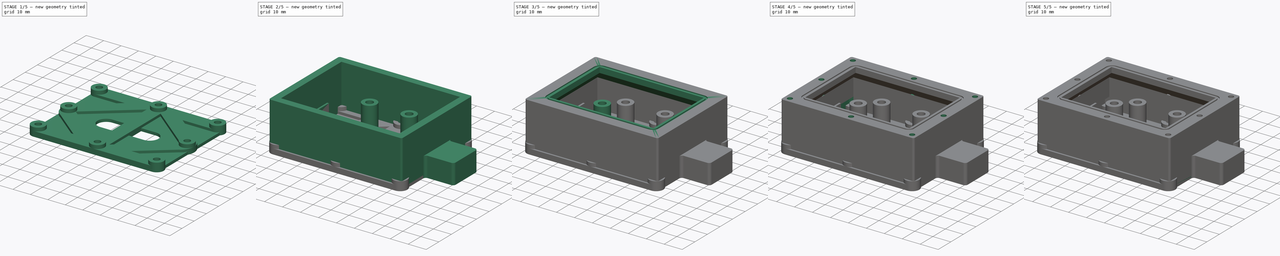
[diagram: build sequence overview — one tinted view per stage of 5, left to right]
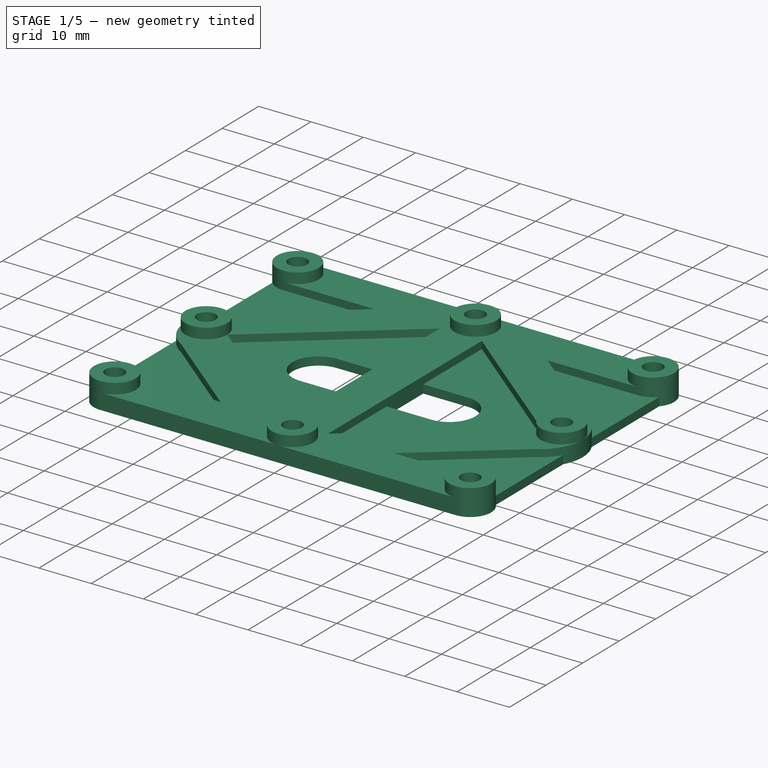
[diagram: stage 1 of 5 — iso view after this stage's code; geometry added in this stage tinted green]
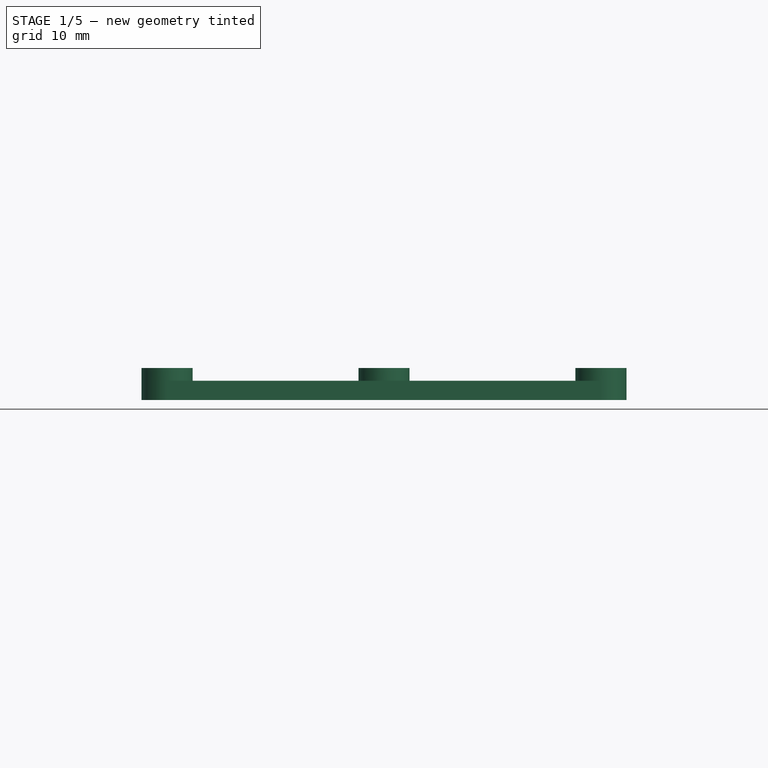
[diagram: stage 1 of 5 — front view after this stage's code; geometry added in this stage tinted green]
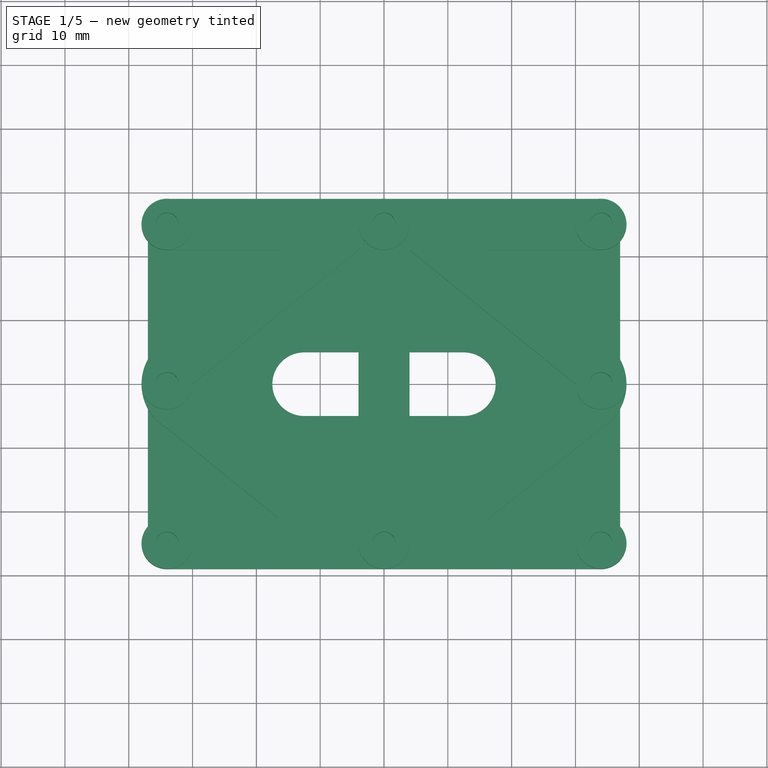
[diagram: stage 1 of 5 — top view after this stage's code; geometry added in this stage tinted green]
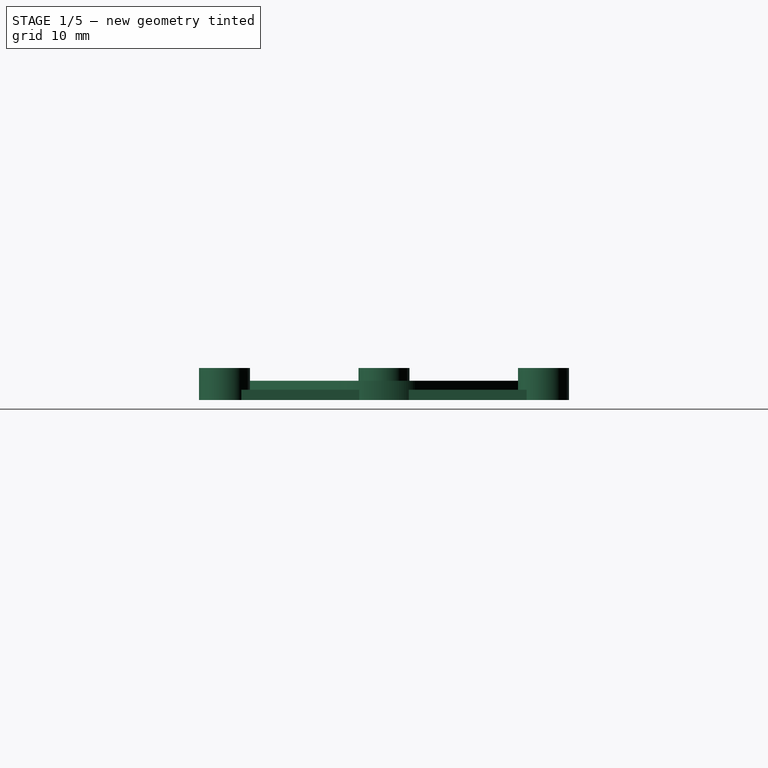
[diagram: stage 1 of 5 — right view after this stage's code; geometry added in this stage tinted green]
FCSTD DOCUMENT  (FreeCAD 0.20R29603 (Git))
Label: RAKTrackerSmallV1
License: All rights reserved
LicenseURL: http://en.wikipedia.org/wiki/All_rights_reserved
objects: Sketcher::SketchObject×20, PartDesign::Pad×14, PartDesign::Body×5, PartDesign::Pocket×4, PartDesign::Hole×4, PartDesign::Plane×3, Spreadsheet::Sheet×1
note: 72 computed .brp shape members not serialized (recipe doc carries the construction recipe); baked Part::Feature solids carry a one-line shape summary decoded from their .brp

FEATURE [Spreadsheet::Sheet] Spreadsheet  label="RAKTrackerSmallSheet"
  cells = A1=Box Dimensions; D1=Components; A3=Box Length; B3(BoxLength)==74mm; D3=Solar Panel Length; E3==70.5mm; A4=Box Width; B4(BoxWidth)==56mm; D4=Solar Panel Width; E4==55.5mm; A5=Box floor; B5(BoxFloorHeight)==1.6mm; D5=Solar Panel height; E5==2.5mm; A6=Box wall thickness length (including screws); B6(BoxWallThicknessLength)==4mm; A7=Box wall thickness width (including screws); B7(BoxWallThicknessWidth)==4mm; D7=Battery Length; E7(BatLength)==59mm; A8=Box Screw Hole Dia; B8(BoxScrewHoleDia)==2.8mm; D8=Battery Width; E8(BatWidth)==34.5mm; A9=Box Screw Height/Depth; B9(BoxScrewHeight)==8mm; D9=Battery Height; E9(BatHeight)==9.5mm; A10=Box Height; B10(BoxHeight)==B5 + E18 + E9; D10=Battery Holder Height; E10(BatHolderHeight)==E9 + B5 + 0.5mm; A11=Box Corner Radisu; B11(BoxCornerRadius)==1mm; D11=Battery Holder Dia; E11(BatHolderDia)==8mm; A12=Box Internal Wall Width; B12(BoxInternalWallThickness)==1mm; D12=Battery Holder Hole Dia; E12(BatHolderHoleDia)==4mm; A13=Box Screw Hole distance from Side; B13(BoxScrewHoleDistance)==3mm; A14=Box internal Length; B14(BoxInternalLength)==B3 - 2 * B7; A15=Box Internal Width; B15(BoxInternalWidth)==B4 - 2 * B6; D16=PCB Length; E16==36mm; D17=PCB Width; E17==30.5mm; A18=Seal Depth; B18(SealDepth)==0.6mm; D18=PCB Height; E18==15.5mm; A19=Seal width; B19(SealWidth)==1mm; D19=PCB Mount Height; E19(PCBMountHeight)==4.5mm; A20=Seal Corner Radius; B20(SealCornerRadius)==2.5mm; D20=PCB Mount From Side; E20(PCBMountSideWidth)==8mm; D21=PCB Mount Hole Dia; E21(PCBMountHoleDia)==4mm; A22=GPS Mount Corner Radius; B22(GPSMountCornerRadius)==1.5mm; D22=PCB Mount Dia; E22(PCBMountDia)==8mm; A23=GPS Mount Wall Thickness; B23(GPSMountWallThickness)==1.5mm; D23=PCB Mount Hole DIstance; E23(PCBMountHoleDistance)==22mm; D24=GPS Length and Width; E24(GPSLength)==16mm; A25=Lid Screw Hole DIa; B25(LidScrewHoleDia)==3.5mm; D25=GPS Height; E25(GPSHeight)==8mm; A26=Lid Height; B26(LidHeight)==2.2mm; D27=Antenna Length; E27(AntLength)==40mm; A28=Box Upper rim width; B28(BoxRimWidth)==4mm; D28=Antenne width; E28(AntWidth)==7.5mm; A29=Box Upper rim min vertical height; B29(BoxRimHeight)==3mm; D29=Antenna Height; E29(AntHeight)==2.5mm; D31=Strap WIdth; E31==26mm; D32=Strap Holder Dia; E32==5mm; D33=Strap Holder hole distance; E33(StrapHoleDistance)==34mm; F33=MIN = E31 + (E32/2); D35=BraceWidth; E35(BraceWidth)==8mm
FEATURE [Sketcher::SketchObject] Sketch  label="BoxBaseSketch"
  FullyConstrained = true
  MapMode = 5
  Support = -> [XY_Plane]
  expr: Constraints[27] = <<RAKTrackerSmallSheet>>.BoxCornerRadius
  expr: Constraints[28] = <<RAKTrackerSmallSheet>>.BoxLength
  expr: Constraints[29] = <<RAKTrackerSmallSheet>>.BoxWidth
  sketch-geometry (12):
    g0: LineSegment StartX=-36 StartY=28 StartZ=0 EndX=36 EndY=28 EndZ=0
    g1: LineSegment StartX=36 StartY=-28 StartZ=0 EndX=-36 EndY=-28 EndZ=0
    g2: LineSegment StartX=-37 StartY=-27 StartZ=0 EndX=-37 EndY=27 EndZ=0
    g3: ArcOfCircle CenterX=-12.5 CenterY=0 CenterZ=0 NormalX=0 NormalY=0 NormalZ=1 AngleXU=0 Radius=5 StartAngle=1.5708 EndAngle=4.71239
    g4: ArcOfCircle CenterX=12.5 CenterY=0 CenterZ=0 NormalX=0 NormalY=0 NormalZ=1 AngleXU=0 Radius=5 StartAngle=4.71239 EndAngle=7.85398
    g5: LineSegment StartX=-12.5 StartY=-5 StartZ=0 EndX=12.5 EndY=-5 EndZ=0
    g6: LineSegment StartX=12.5 StartY=5 StartZ=0 EndX=-12.5 EndY=5 EndZ=0
    g7: LineSegment StartX=37 StartY=27 StartZ=0 EndX=37 EndY=-27 EndZ=0
    g8: ArcOfCircle CenterX=36 CenterY=-27 CenterZ=0 NormalX=0 NormalY=0 NormalZ=1 AngleXU=0 Radius=1 StartAngle=4.71239 EndAngle=6.28319
    g9: ArcOfCircle CenterX=-36 CenterY=-27 CenterZ=0 NormalX=0 NormalY=0 NormalZ=1 AngleXU=0 Radius=1 StartAngle=3.14159 EndAngle=4.71239
    g10: ArcOfCircle CenterX=-36 CenterY=27 CenterZ=0 NormalX=0 NormalY=0 NormalZ=1 AngleXU=0 Radius=1 StartAngle=1.5708 EndAngle=3.14159
    g11: ArcOfCircle CenterX=36 CenterY=27 CenterZ=0 NormalX=0 NormalY=0 NormalZ=1 AngleXU=0 Radius=1 StartAngle=0 EndAngle=1.5708
  constraints (33):
    c: Horizontal(g0)
    c: Horizontal(g1)
    c: Vertical(g2)
    c: Equal(g3,g4)
    c: PointOnObject(g3,g-1)
    c: PointOnObject(g4,g-1)
    c: DistanceY(g3,g3) = 10
    c: DistanceX(g3,g4) = 25
    c: Symmetric(g4,g3,g-1)
    c: Coincident(g5,g3)
    c: Coincident(g3,g6)
    c: Coincident(g4,g6)
    c: Coincident(g5,g4)
    c: Horizontal(g6)
    c: Vertical(g3,g3)
    c: Vertical(g4,g4)
    c: Vertical(g7)
    c: Tangent(g1,g8) = 1.5708
    c: Tangent(g2,g9) = 1.5708
    c: Tangent(g1,g9) = 1.5708
    c: Tangent(g2,g10) = 1.5708
    c: Tangent(g0,g10) = 1.5708
    c: Tangent(g0,g11) = 1.5708
    c: Tangent(g7,g11) = 1.5708
    c: Equal(g10,g9)
    c: Equal(g10,g8)
    c: Equal(g10,g11)
    c: Radius(g10) = 1
    c: DistanceX(g2,g7) = 74
    c: DistanceY(g1,g0) = 56
    c: Symmetric(g11,g9,g-1)
    c: Coincident(g8,g7)
    c: Horizontal(g7,g8)
FEATURE [PartDesign::Pad] Pad  label="BoxBase"
  Direction = (0,0,1)
  Length = 1.6
  Length2 = 10
  Profile = -> Sketch
  ReferenceAxis = -> Sketch [N_Axis]
  Type = 0
  expr: Length = <<RAKTrackerSmallSheet>>.BoxFloorHeight
FEATURE [PartDesign::Body] Body  label="Box"
  Group = -> [Sketch,Pad,Sketch001,Pad001,Sketch002,Pad002,DatumPlane,DatumPlane001,Sketch003,Pocket,Sketch005,Pad003,Sketch006,Pad004,Sketch007,Pad005,DatumPlane002,Sketch008,Sketch009,Pad006,Sketch010,Pad007,Sketch011,Pocket002,Sketch018,Pocket003,Pocket004]
  Origin = -> Origin
  Tip = -> Pocket004
FEATURE [Sketcher::SketchObject] Sketch019  label="FullStrapOffsetSketch"
  FullyConstrained = true
  MapMode = 5
  Support = -> [XY_Plane004]
  expr: Constraints[23] = <<RAKTrackerSmallSheet>>.BoxScrewHoleDistance
  expr: Constraints[24] = <<RAKTrackerSmallSheet>>.BoxScrewHoleDistance
  expr: Constraints[25] = <<RAKTrackerSmallSheet>>.StrapHoleDistance
  expr: Constraints[26] = <<RAKTrackerSmallSheet>>.StrapHoleDistance
  expr: Constraints[8] = <<RAKTrackerSmallSheet>>.BoxLength
  expr: Constraints[9] = <<RAKTrackerSmallSheet>>.BoxWidth
  sketch-geometry (12):
    g0: LineSegment StartX=-37 StartY=28 StartZ=0 EndX=37 EndY=28 EndZ=0
    g1: LineSegment StartX=37 StartY=28 StartZ=0 EndX=37 EndY=-28 EndZ=0
    g2: LineSegment StartX=37 StartY=-28 StartZ=0 EndX=-37 EndY=-28 EndZ=0
    g3: LineSegment StartX=-37 StartY=-28 StartZ=0 EndX=-37 EndY=28 EndZ=0
    g4: Circle CenterX=-34 CenterY=25 CenterZ=0 NormalX=0 NormalY=0 NormalZ=1 AngleXU=0 Radius=4
    g5: Circle CenterX=0 CenterY=25 CenterZ=0 NormalX=0 NormalY=0 NormalZ=1 AngleXU=0 Radius=4
    g6: Circle CenterX=34 CenterY=25 CenterZ=0 NormalX=0 NormalY=0 NormalZ=1 AngleXU=0 Radius=4
    g7: Circle CenterX=0 CenterY=-25 CenterZ=0 NormalX=0 NormalY=0 NormalZ=1 AngleXU=0 Radius=4
    g8: Circle CenterX=-34 CenterY=-25 CenterZ=0 NormalX=0 NormalY=0 NormalZ=1 AngleXU=0 Radius=4
    g9: Circle CenterX=34 CenterY=-25 CenterZ=0 NormalX=0 NormalY=0 NormalZ=1 AngleXU=0 Radius=4
    g10: Circle CenterX=34 CenterY=0 CenterZ=0 NormalX=0 NormalY=0 NormalZ=1 AngleXU=0 Radius=4
    g11: Circle CenterX=-34 CenterY=0 CenterZ=0 NormalX=0 NormalY=0 NormalZ=1 AngleXU=0 Radius=4
  constraints (35):
    c: Coincident(g0,g1)
    c: Coincident(g1,g2)
    c: Coincident(g2,g3)
    c: Coincident(g3,g0)
    c: Horizontal(g0)
    c: Horizontal(g2)
    c: Vertical(g1)
    c: Vertical(g3)
    c: DistanceX(g0,g0) = 74
    c: DistanceY(g3,g3) = 56
    c: Symmetric(g0,g1,g-1)
    c: PointOnObject(g5,g-2)
    c: PointOnObject(g7,g-2)
    c: PointOnObject(g10,g-1)
    c: PointOnObject(g11,g-1)
    c: Horizontal(g4,g5)
    c: Horizontal(g5,g6)
    c: Horizontal(g8,g7)
    c: Horizontal(g7,g9)
    c: Vertical(g4,g11)
    c: Vertical(g11,g8)
    c: Vertical(g6,g10)
    c: Vertical(g10,g9)
    c: DistanceY(g4,g0) = 3
    c: DistanceY(g2,g8) = 3
    c: DistanceX(g4,g5) = 34
    c: DistanceX(g5,g6) = 34
    c: Equal(g4,g11)
    c: Equal(g4,g5)
    c: Equal(g4,g8)
    c: Equal(g4,g7)
    c: Equal(g4,g9)
    c: Equal(g4,g10)
    c: Equal(g4,g6)
    c: Diameter(g4) = 8
FEATURE [Sketcher::SketchObject] Sketch020  label="FulllStrapBaseSketch"
  FullyConstrained = true
  MapMode = 5
  Support = -> [XY_Plane004]
  expr: Constraints[17] = <<RAKTrackerSmallSheet>>.BoxScrewHoleDistance
  expr: Constraints[18] = <<RAKTrackerSmallSheet>>.BoxScrewHoleDistance
  expr: Constraints[50] = <<RAKTrackerSmallSheet>>.BraceWidth
  expr: Constraints[60] = <<RAKTrackerSmallSheet>>.BraceWidth
  expr: Constraints[64] = <<RAKTrackerSmallSheet>>.BraceWidth
  expr: Constraints[65] = <<RAKTrackerSmallSheet>>.BraceWidth / 2
  expr: Constraints[70] = <<RAKTrackerSmallSheet>>.BraceWidth / 2
  expr: Constraints[79] = <<RAKTrackerSmallSheet>>.BoxScrewHoleDistance
  expr: Constraints[80] = <<RAKTrackerSmallSheet>>.BoxScrewHoleDistance
  expr: Constraints[86] = <<RAKTrackerSmallSheet>>.BraceWidth
  expr: Constraints[8] = <<RAKTrackerSmallSheet>>.BoxLength
  expr: Constraints[92] = <<RAKTrackerSmallSheet>>.BraceWidth
  expr: Constraints[9] = <<RAKTrackerSmallSheet>>.BoxWidth
  sketch-geometry (30):
    g0: LineSegment StartX=-37 StartY=28 StartZ=0 EndX=37 EndY=28 EndZ=0
    g1: LineSegment StartX=37 StartY=28 StartZ=0 EndX=37 EndY=-28 EndZ=0
    g2: LineSegment StartX=37 StartY=-28 StartZ=0 EndX=-37 EndY=-28 EndZ=0
    g3: LineSegment StartX=-37 StartY=-28 StartZ=0 EndX=-37 EndY=28 EndZ=0
    g4: LineSegment StartX=-37 StartY=25 StartZ=0 EndX=37 EndY=25 EndZ=0
    g5: LineSegment StartX=-37 StartY=-25 StartZ=0 EndX=37 EndY=-25 EndZ=0
    g6: LineSegment StartX=-34 StartY=29 StartZ=0 EndX=34 EndY=29 EndZ=0
    g7: LineSegment StartX=-34 StartY=21 StartZ=0 EndX=-16.5778 EndY=21 EndZ=0
    g8: LineSegment StartX=-16.5778 StartY=21 StartZ=0 EndX=-34 EndY=6.9282 EndZ=0
    g9: LineSegment StartX=-30 StartY=0 StartZ=0 EndX=-4 EndY=21 EndZ=0
    g10: LineSegment StartX=-4 StartY=21 StartZ=0 EndX=-4 EndY=-21 EndZ=0
    g11: LineSegment StartX=-4 StartY=-21 StartZ=0 EndX=-30 EndY=0 EndZ=0
    g12: LineSegment StartX=-16.5778 StartY=-21 StartZ=0 EndX=-34 EndY=-6.9282 EndZ=0
    g13: LineSegment StartX=-16.5778 StartY=-21 StartZ=0 EndX=-34 EndY=-21 EndZ=0
    g14: LineSegment StartX=-34 StartY=-29 StartZ=0 EndX=34 EndY=-29 EndZ=0
    g15: LineSegment StartX=4 StartY=21 StartZ=0 EndX=4 EndY=-21 EndZ=0
    g16: LineSegment StartX=4 StartY=-21 StartZ=0 EndX=30 EndY=0 EndZ=0
    g17: LineSegment StartX=4 StartY=21 StartZ=0 EndX=30 EndY=0 EndZ=0
    g18: LineSegment StartX=16.5778 StartY=21 StartZ=0 EndX=34 EndY=21 EndZ=0
    g19: LineSegment StartX=16.5778 StartY=21 StartZ=0 EndX=34 EndY=6.9282 EndZ=0
    g20: LineSegment StartX=16.5778 StartY=-21 StartZ=0 EndX=34 EndY=-21 EndZ=0
    g21: LineSegment StartX=16.5778 StartY=-21 StartZ=0 EndX=34 EndY=-6.9282 EndZ=0
    g22: ArcOfCircle CenterX=-34 CenterY=25 CenterZ=0 NormalX=0 NormalY=0 NormalZ=1 AngleXU=0 Radius=4 StartAngle=1.5708 EndAngle=4.71239
    g23: ArcOfCircle CenterX=34 CenterY=25 CenterZ=0 NormalX=0 NormalY=0 NormalZ=1 AngleXU=0 Radius=4 StartAngle=4.71239 EndAngle=7.85398
    g24: ArcOfCircle CenterX=34 CenterY=-25 CenterZ=0 NormalX=0 NormalY=0 NormalZ=1 AngleXU=0 Radius=4 StartAngle=4.71239 EndAngle=7.85398
    g25: ArcOfCircle CenterX=-34 CenterY=-25 CenterZ=0 NormalX=0 NormalY=0 NormalZ=1 AngleXU=0 Radius=4 StartAngle=1.5708 EndAngle=4.71239
    g26: ArcOfCircle CenterX=-30 CenterY=0 CenterZ=0 NormalX=0 NormalY=0 NormalZ=1 AngleXU=0 Radius=8 StartAngle=2.0944 EndAngle=4.18879
    g27: ArcOfCircle CenterX=30 CenterY=0 CenterZ=0 NormalX=0 NormalY=0 NormalZ=1 AngleXU=0 Radius=8 StartAngle=5.23599 EndAngle=7.33038
    g28: LineSegment StartX=-38 StartY=28 StartZ=0 EndX=-38 EndY=-28 EndZ=0
    g29: LineSegment StartX=38 StartY=28 StartZ=0 EndX=38 EndY=-28 EndZ=0
  constraints (97):
    c: Coincident(g0,g1)
    c: Coincident(g1,g2)
    c: Coincident(g2,g3)
    c: Coincident(g3,g0)
    c: Horizontal(g0)
    c: Horizontal(g2)
    c: Vertical(g1)
    c: Vertical(g3)
    c: DistanceX(g0,g0) = 74
    c: DistanceY(g3,g3) = 56
    c: Symmetric(g0,g1,g-1)
    c: PointOnObject(g4,g3)
    c: PointOnObject(g4,g1)
    c: Horizontal(g4)
    c: PointOnObject(g5,g3)
    c: PointOnObject(g5,g1)
    c: Horizontal(g5)
    c: DistanceY(g2,g5) = 3
    c: DistanceY(g4,g0) = 3
    c: Horizontal(g6)
    c: Horizontal(g7)
    c: Coincident(g8,g7)
    c: PointOnObject(g9,g-1)
    c: Coincident(g10,g9)
    c: Vertical(g10)
    c: Coincident(g11,g10)
    c: Coincident(g11,g9)
    c: Coincident(g13,g12)
    c: Horizontal(g13)
    c: Horizontal(g14)
    c: Vertical(g15)
    c: Coincident(g16,g15)
    c: PointOnObject(g16,g-1)
    c: Coincident(g17,g15)
    c: Coincident(g17,g16)
    c: Horizontal(g18)
    c: Horizontal(g20)
    c: Coincident(g21,g20)
    c: Coincident(g22,g6)
    c: Coincident(g22,g7)
    c: Coincident(g23,g18)
    c: Coincident(g23,g6)
    c: Coincident(g24,g20)
    c: Coincident(g24,g14)
    c: Coincident(g25,g13)
    c: Coincident(g25,g14)
    c: Coincident(g26,g8)
    c: Coincident(g26,g12)
    c: Coincident(g27,g19)
    c: Coincident(g27,g21)
    c: DistanceY(g7,g6) = 8
    c: PointOnObject(g22,g4)
    c: Coincident(g18,g19)
    c: PointOnObject(g23,g4)
    c: Vertical(g6,g18)
    c: Vertical(g6,g7)
    c: Horizontal(g15,g9)
    c: Horizontal(g20,g15)
    c: Horizontal(g15,g10)
    c: Horizontal(g10,g12)
    c: DistanceY(g14,g20) = 8
    c: Vertical(g20,g14)
    c: Vertical(g13,g14)
    c: PointOnObject(g25,g5)
    c: DistanceX(g9,g15) = 8
    c: DistanceX(g-1,g15) = 4
    c: Horizontal(g9,g7)
    c: Equal(g22,g25)
    c: Equal(g22,g24)
    c: Equal(g22,g23)
    c: Radius(g22) = 4
    c: Vertical(g7,g12)
    c: Vertical(g18,g20)
    c: Vertical(g7,g13)
    c: Vertical(g18,g20)
    c: Vertical(g20,g19)
    c: Vertical(g8,g7)
    c: Vertical(g8,g12)
    c: Vertical(g19,g21)
    c: DistanceX(g0,g6) = 3
    c: DistanceX(g6,g0) = 3
    c: Coincident(g27,g16)
    c: Coincident(g9,g26)
    c: Vertical(g28)
    c: Tangent(g28,g22)
    c: Tangent(g26,g28)
    c: Distance(g9,g28) = 8
    c: Parallel(g8,g9)
    c: Vertical(g29)
    c: Tangent(g29,g24)
    c: Tangent(g27,g29)
    c: Parallel(g19,g17)
    c: Distance(g16,g29) = 8
    c: Horizontal(g28,g0)
    c: Horizontal(g2,g28)
    c: Horizontal(g29,g1)
    c: Horizontal(g29,g0)
FEATURE [PartDesign::Pad] Pad012  label="FullStrapBase"
  Direction = (0,0,1)
  Length = 3
  Length2 = 10
  Profile = -> Sketch020
  ReferenceAxis = -> Sketch020 [N_Axis]
  Type = 0
FEATURE [PartDesign::Pad] Pad013  label="FullStrapOffset"
  BaseFeature = -> Pad012
  Direction = (0,0,1)
  Length = 5
  Length2 = 10
  Profile = -> Sketch019
  ReferenceAxis = -> Sketch019 [N_Axis]
  Type = 0
  expr: Length = <<FullStrapBase>>.Length + 2mm
FEATURE [PartDesign::Hole] Hole003  label="FullStrapScrewHoles"
  BaseFeature = -> Pad013
  CustomThreadClearance = 0
  Depth = 25
  DepthType = 0
  Diameter = 3.6
  DrillForDepth = false
  DrillPoint = 1
  DrillPointAngle = 118
  HoleCutCountersinkAngle = 90
  HoleCutCustomValues = false
  HoleCutDepth = 0
  HoleCutDiameter = 6.7
  HoleCutType = 7
  ModelThread = false
  Profile = -> Sketch019
  Reversed = true
  Tapered = false
  TaperedAngle = 90
  ThreadClass = 0
  ThreadDepth = 25
  ThreadDepthType = 0
  ThreadDirection = 0
  ThreadFit = 2
  ThreadSize = 9
  ThreadType = 1
  Threaded = false
  UseCustomThreadClearance = false
FEATURE [PartDesign::Body] Body004  label="FullStrap"
  Group = -> [Sketch020,Pad012,Sketch019,Pad013,Hole003]
  Origin = -> Origin004
  Placement = pos=(-1e-15,0,38) rot=(0,1,0;3.14159rad)
  Tip = -> Hole003
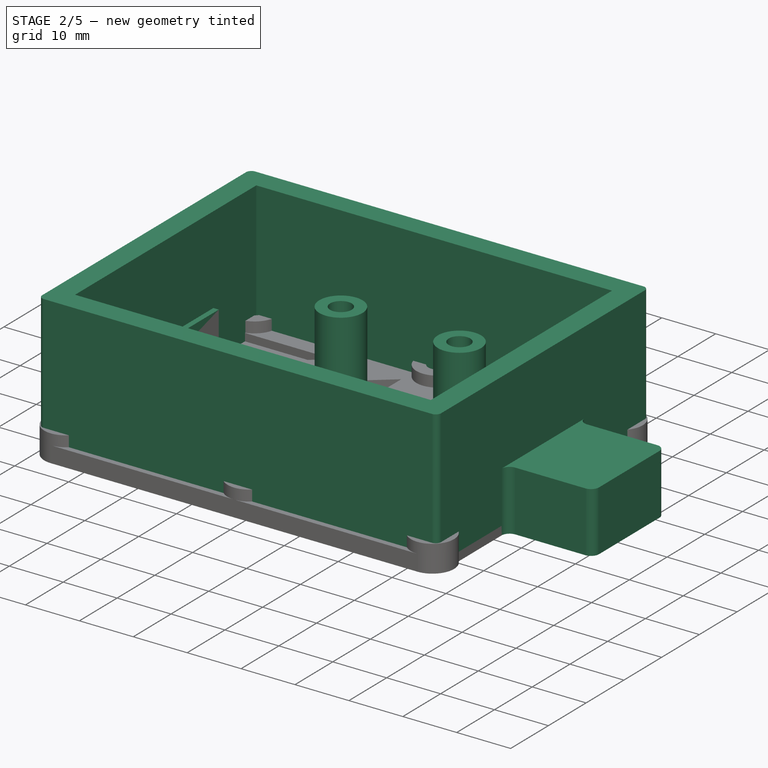
[diagram: stage 2 of 5 — iso view after this stage's code; geometry added in this stage tinted green]
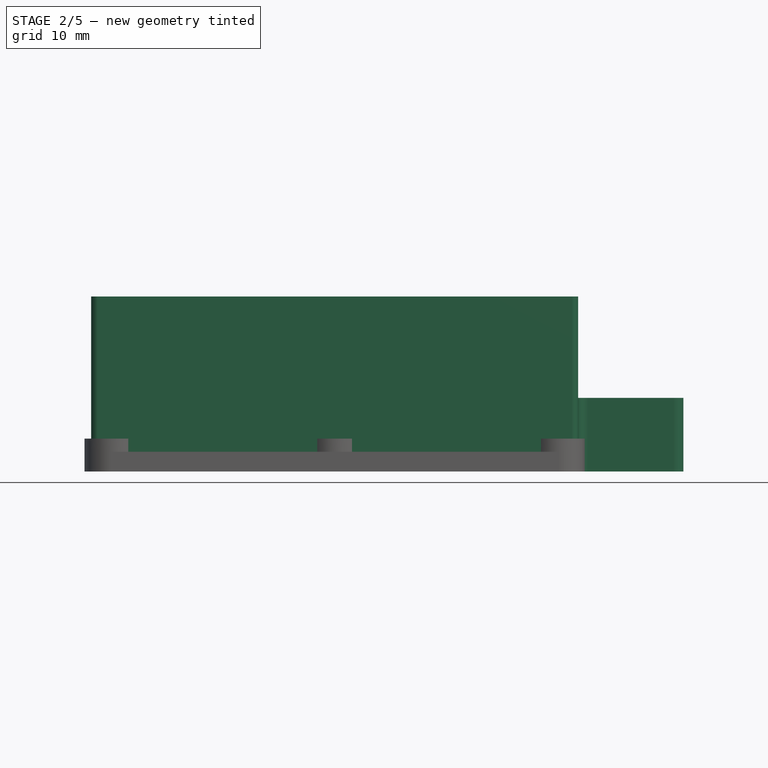
[diagram: stage 2 of 5 — front view after this stage's code; geometry added in this stage tinted green]
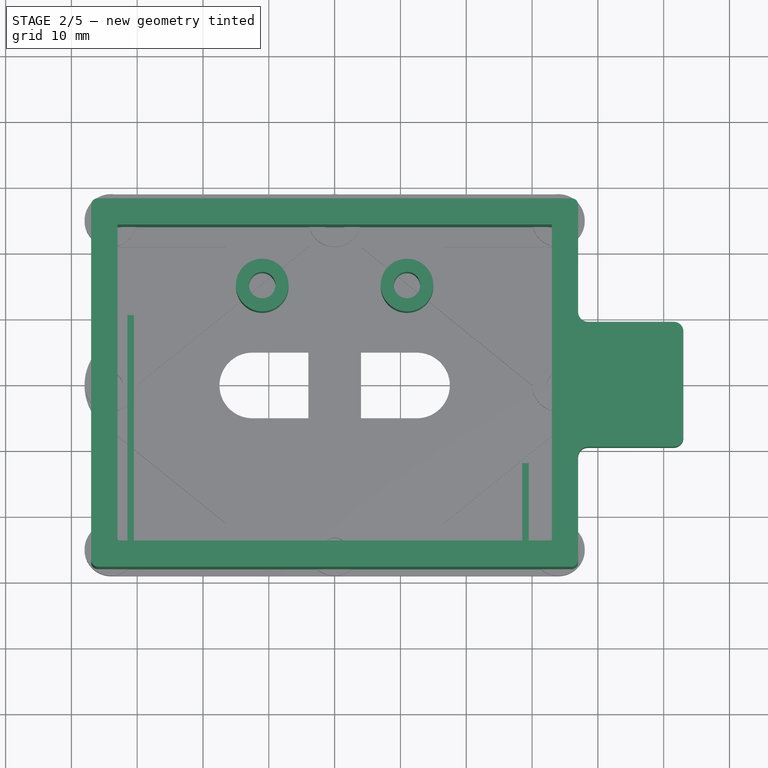
[diagram: stage 2 of 5 — top view after this stage's code; geometry added in this stage tinted green]
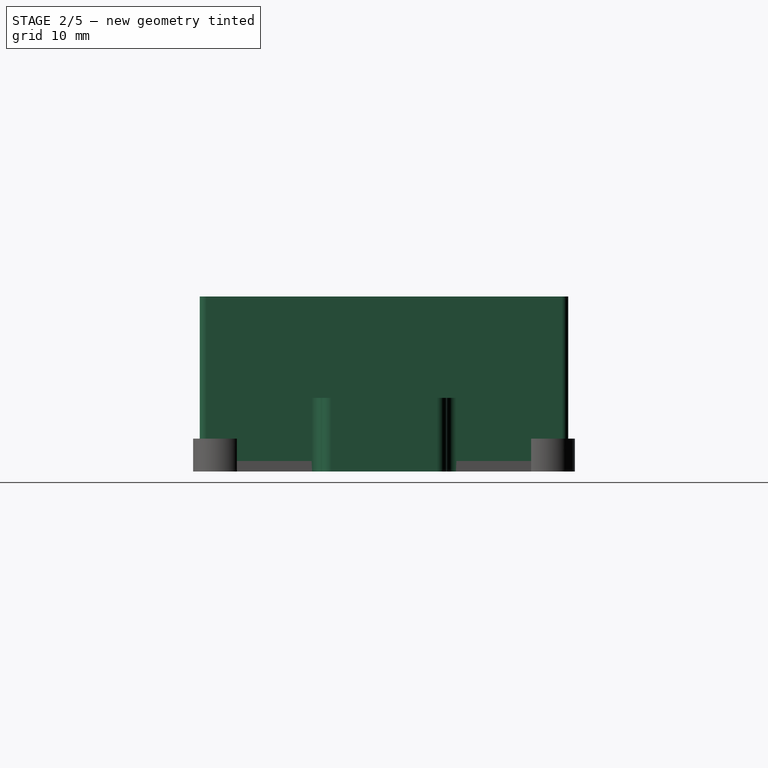
[diagram: stage 2 of 5 — right view after this stage's code; geometry added in this stage tinted green]
FEATURE [Sketcher::SketchObject] Sketch001  label="BoxWallSketch"
  FullyConstrained = true
  MapMode = 5
  Support = -> [XY_Plane]
  expr: Constraints[14] = <<RAKTrackerSmallSheet>>.BoxLength
  expr: Constraints[15] = <<RAKTrackerSmallSheet>>.BoxLength - 2 * <<RAKTrackerSmallSheet>>.BoxWallThicknessWidth
  expr: Constraints[16] = <<RAKTrackerSmallSheet>>.BoxWidth
  expr: Constraints[17] = <<RAKTrackerSmallSheet>>.BoxWidth - 2 * <<RAKTrackerSmallSheet>>.BoxWallThicknessLength
  expr: Constraints[37] = <<RAKTrackerSmallSheet>>.BoxCornerRadius
  sketch-geometry (16):
    g0: LineSegment StartX=-36 StartY=28 StartZ=0 EndX=36 EndY=28 EndZ=0
    g1: LineSegment StartX=37 StartY=27 StartZ=0 EndX=37 EndY=-27 EndZ=0
    g2: LineSegment StartX=36 StartY=-28 StartZ=0 EndX=-36 EndY=-28 EndZ=0
    g3: LineSegment StartX=-37 StartY=-27 StartZ=0 EndX=-37 EndY=27 EndZ=0
    g4: LineSegment StartX=-33 StartY=24 StartZ=0 EndX=33 EndY=24 EndZ=0
    g5: LineSegment StartX=33 StartY=24 StartZ=0 EndX=33 EndY=-24 EndZ=0
    g6: LineSegment StartX=33 StartY=-24 StartZ=0 EndX=-33 EndY=-24 EndZ=0
    g7: LineSegment StartX=-33 StartY=-24 StartZ=0 EndX=-33 EndY=24 EndZ=0
    g8: ArcOfCircle CenterX=-36 CenterY=27 CenterZ=0 NormalX=0 NormalY=0 NormalZ=1 AngleXU=0 Radius=1 StartAngle=1.5708 EndAngle=3.14159
    g9: GeomPoint X=-37 Y=28 Z=0
    g10: ArcOfCircle CenterX=-36 CenterY=-27 CenterZ=0 NormalX=0 NormalY=0 NormalZ=1 AngleXU=0 Radius=1 StartAngle=3.14159 EndAngle=4.71239
    g11: GeomPoint X=-37 Y=-28 Z=0
    g12: ArcOfCircle CenterX=36 CenterY=-27 CenterZ=0 NormalX=0 NormalY=0 NormalZ=1 AngleXU=0 Radius=1 StartAngle=4.71239 EndAngle=6.28319
    g13: GeomPoint X=37 Y=-28 Z=0
    g14: ArcOfCircle CenterX=36 CenterY=27 CenterZ=0 NormalX=0 NormalY=0 NormalZ=1 AngleXU=0 Radius=1 StartAngle=1e-16 EndAngle=1.5708
    g15: GeomPoint X=37 Y=28 Z=0
  constraints (38):
    c: Horizontal(g0)
    c: Horizontal(g2)
    c: Vertical(g1)
    c: Vertical(g3)
    c: Coincident(g4,g5)
    c: Coincident(g5,g6)
    c: Coincident(g6,g7)
    c: Coincident(g7,g4)
    c: Horizontal(g4)
    c: Horizontal(g6)
    c: Vertical(g5)
    c: Vertical(g7)
    c: Symmetric(g4,g5,g-1)
    c: Symmetric(g9,g13,g-1)
    c: DistanceX(g9,g15) = 74
    c: DistanceX(g4,g4) = 66
    c: DistanceY(g11,g9) = 56
    c: DistanceY(g6,g4) = 48
    c: PointOnObject(g9,g0)
    c: PointOnObject(g9,g3)
    c: Tangent(g0,g8) = 1.5708
    c: Tangent(g3,g8) = 1.5708
    c: PointOnObject(g11,g3)
    c: PointOnObject(g11,g2)
    c: Tangent(g3,g10) = 1.5708
    c: Tangent(g2,g10) = 1.5708
    c: PointOnObject(g13,g1)
    c: PointOnObject(g13,g2)
    c: Tangent(g1,g12) = 1.5708
    c: Tangent(g2,g12) = 1.5708
    c: PointOnObject(g15,g0)
    c: PointOnObject(g15,g1)
    c: Tangent(g0,g14) = 1.5708
    c: Tangent(g1,g14) = 1.5708
    c: Equal(g8,g14)
    c: Equal(g8,g12)
    c: Equal(g8,g10)
    c: Radius(g8) = 1
FEATURE [PartDesign::Pad] Pad001  label="BoxWalls"
  BaseFeature = -> Pad
  Direction = (0,0,1)
  Length = 26.6
  Length2 = 10
  Profile = -> Sketch001
  ReferenceAxis = -> Sketch001 [N_Axis]
  Type = 0
  expr: Length = <<RAKTrackerSmallSheet>>.BoxHeight
FEATURE [Sketcher::SketchObject] Sketch002  label="BoxGPSMountSketch"
  FullyConstrained = true
  MapMode = 5
  Support = -> [XY_Plane]
  expr: .AttachmentOffset.Base.z = 0
  expr: Constraints[10] = <<RAKTrackerSmallSheet>>.BoxWidth
  expr: Constraints[24] = <<RAKTrackerSmallSheet>>.GPSMountCornerRadius
  expr: Constraints[29] = <<RAKTrackerSmallSheet>>.GPSLength
  expr: Constraints[30] = 2 * <<RAKTrackerSmallSheet>>.GPSMountWallThickness + <<RAKTrackerSmallSheet>>.GPSLength
  expr: Constraints[32] = <<RAKTrackerSmallSheet>>.GPSMountCornerRadius
  expr: Constraints[9] = <<RAKTrackerSmallSheet>>.BoxLength
  sketch-geometry (13):
    g0: LineSegment StartX=-37 StartY=28 StartZ=0 EndX=37 EndY=28 EndZ=0
    g1: LineSegment StartX=37 StartY=28 StartZ=0 EndX=37 EndY=-28 EndZ=0
    g2: LineSegment StartX=37 StartY=-28 StartZ=0 EndX=-37 EndY=-28 EndZ=0
    g3: LineSegment StartX=-37 StartY=-28 StartZ=0 EndX=-37 EndY=28 EndZ=0
    g4: LineSegment StartX=51.5 StartY=9.5 StartZ=0 EndX=38.5 EndY=9.5 EndZ=0
    g5: LineSegment StartX=38.5 StartY=-9.5 StartZ=0 EndX=51.5 EndY=-9.5 EndZ=0
    g6: LineSegment StartX=53 StartY=8 StartZ=0 EndX=53 EndY=-8 EndZ=0
    g7: ArcOfCircle CenterX=51.5 CenterY=-8 CenterZ=0 NormalX=0 NormalY=0 NormalZ=1 AngleXU=0 Radius=1.5 StartAngle=4.71239 EndAngle=6.28319
    g8: ArcOfCircle CenterX=51.5 CenterY=8 CenterZ=0 NormalX=0 NormalY=0 NormalZ=1 AngleXU=0 Radius=1.5 StartAngle=0 EndAngle=1.5708
    g9: ArcOfCircle CenterX=38.5 CenterY=11 CenterZ=0 NormalX=0 NormalY=0 NormalZ=1 AngleXU=0 Radius=1.5 StartAngle=3.14159 EndAngle=4.71239
    g10: ArcOfCircle CenterX=38.5 CenterY=-11 CenterZ=0 NormalX=0 NormalY=0 NormalZ=1 AngleXU=0 Radius=1.5 StartAngle=1.5708 EndAngle=3.14159
    g11: LineSegment StartX=37 StartY=11 StartZ=0 EndX=37 EndY=0 EndZ=0
    g12: LineSegment StartX=37 StartY=0 StartZ=0 EndX=37 EndY=-11 EndZ=0
  constraints (42):
    c: Coincident(g0,g1)
    c: Coincident(g1,g2)
    c: Coincident(g2,g3)
    c: Coincident(g3,g0)
    c: Horizontal(g0)
    c: Horizontal(g2)
    c: Vertical(g1)
    c: Vertical(g3)
    c: Symmetric(g0,g1,g-1)
    c: DistanceX(g0,g0) = 74
    c: DistanceY(g1,g0) = 56
    c: PointOnObject(g9,g1)
    c: Horizontal(g4)
    c: Horizontal(g5)
    c: Vertical(g6)
    c: Equal(g4,g5)
    c: Coincident(g7,g6)
    c: Coincident(g7,g5)
    c: Coincident(g8,g6)
    c: Coincident(g8,g4)
    c: Coincident(g9,g4)
    c: Coincident(g10,g5)
    c: Tangent(g10,g1)
    c: Equal(g8,g7)
    c: Radius(g8) = 1.5
    c: Horizontal(g8,g6)
    c: Horizontal(g7,g6)
    c: Vertical(g7,g5)
    c: Vertical(g4,g8)
    c: DistanceX(g9,g6) = 16
    c: DistanceY(g5,g4) = 19
    c: Equal(g9,g10)
    c: Radius(g9) = 1.5
    c: Vertical(g9,g4)
    c: Vertical(g5,g10)
    c: Horizontal(g10,g10)
    c: Coincident(g11,g9)
    c: PointOnObject(g11,g-1)
    c: Coincident(g12,g11)
    c: Coincident(g12,g10)
    c: Equal(g11,g12)
    c: Vertical(g11)
FEATURE [PartDesign::Pad] Pad002  label="BoxGPSMount"
  BaseFeature = -> Pad001
  Direction = (0,0,1)
  Length = 11.2
  Length2 = 10
  Profile = -> Sketch002
  ReferenceAxis = -> Sketch002 [N_Axis]
  Type = 0
  expr: Length = <<RAKTrackerSmallSheet>>.GPSHeight + 2 * <<RAKTrackerSmallSheet>>.BoxFloorHeight
FEATURE [PartDesign::Plane] DatumPlane  label="RightInnerDatum"
  AttachmentOffset = pos=(0,0,33) rot=(0,0,1;0rad)
  Length = 66.751
  MapMode = 5
  Placement = pos=(33,-7.3e-15,7.3e-15) rot=(0.57735,0.57735,0.57735;2.0944rad)
  ResizeMode = 0
  Support = -> [YZ_Plane]
  Width = 62.351
  expr: .AttachmentOffset.Base.z = <<RAKTrackerSmallSheet>>.BoxLength / 2 - <<RAKTrackerSmallSheet>>.BoxWallThicknessWidth
FEATURE [PartDesign::Plane] DatumPlane001  label="LeftInnerDatum"
  AttachmentOffset = pos=(0,0,33) rot=(0,0,1;0rad)
  Length = 66.751
  MapMode = 5
  Placement = pos=(-33,7.3e-15,-7.3e-15) rot=(-0.57735,0.57735,0.57735;4.18879rad)
  ResizeMode = 0
  Support = -> [YZ_Plane]
  Width = 62.351
  expr: .AttachmentOffset.Base.z = <<RAKTrackerSmallSheet>>.BoxLength / 2 - <<RAKTrackerSmallSheet>>.BoxWallThicknessWidth
  expr: .Placement.Base.z = -1 * <<RAKTrackerSmallSheet>>.BoxLength / 2 - <<RAKTrackerSmallSheet>>.BoxWallThicknessWidth
FEATURE [Sketcher::SketchObject] Sketch003  label="BoxGPSMountPocketSketch"
  FullyConstrained = true
  MapMode = 5
  Placement = pos=(33,-7.3e-15,7.3e-15) rot=(0.57735,0.57735,0.57735;2.0944rad)
  Support = -> [DatumPlane]
  expr: Constraints[10] = <<RAKTrackerSmallSheet>>.BoxFloorHeight
  expr: Constraints[11] = <<RAKTrackerSmallSheet>>.GPSLength
  expr: Constraints[12] = <<RAKTrackerSmallSheet>>.GPSHeight
  sketch-geometry (5):
    g0: LineSegment StartX=-8 StartY=9.6 StartZ=0 EndX=8 EndY=9.6 EndZ=0
    g1: LineSegment StartX=8 StartY=9.6 StartZ=0 EndX=8 EndY=1.6 EndZ=0
    g2: LineSegment StartX=8 StartY=1.6 StartZ=0 EndX=-8 EndY=1.6 EndZ=0
    g3: LineSegment StartX=-8 StartY=1.6 StartZ=0 EndX=-8 EndY=9.6 EndZ=0
    g4: LineSegment StartX=0 StartY=0 StartZ=0 EndX=0 EndY=1.6 EndZ=0
  constraints (14):
    c: Coincident(g0,g1)
    c: Coincident(g1,g2)
    c: Coincident(g2,g3)
    c: Coincident(g3,g0)
    c: Horizontal(g0)
    c: Horizontal(g2)
    c: Vertical(g1)
    c: Vertical(g3)
    c: Coincident(g4,g-1)
    c: Vertical(g4)
    c: DistanceY(g4,g4) = 1.6
    c: DistanceX(g0,g0) = 16
    c: DistanceY(g1,g0) = 8
    c: Symmetric(g1,g2,g4)
FEATURE [PartDesign::Pocket] Pocket  label="BoxGPSMountPocket"
  BaseFeature = -> Pad002
  Direction = (-1,1e-16,-1e-16)
  Length = 16
  Length2 = 5
  Profile = -> Sketch003
  ReferenceAxis = -> Sketch003 [N_Axis]
  Reversed = true
  Type = 0
  expr: Length = <<RAKTrackerSmallSheet>>.GPSLength
FEATURE [Sketcher::SketchObject] Sketch005
  FullyConstrained = true
  MapMode = 5
  Support = -> [XY_Plane]
  expr: Constraints[10] = <<RAKTrackerSmallSheet>>.BoxWidth - 2 * <<RAKTrackerSmallSheet>>.BoxWallThicknessLength
  expr: Constraints[13] = <<RAKTrackerSmallSheet>>.PCBMountHoleDistance
  expr: Constraints[15] = <<RAKTrackerSmallSheet>>.PCBMountHoleDia
  expr: Constraints[17] = <<RAKTrackerSmallSheet>>.PCBMountDia
  expr: Constraints[19] = <<RAKTrackerSmallSheet>>.BatWidth + 0.5mm + <<RAKTrackerSmallSheet>>.BatHolderDia / 2
  expr: Constraints[9] = <<RAKTrackerSmallSheet>>.BoxLength - 2 * <<RAKTrackerSmallSheet>>.BoxWallThicknessWidth
  sketch-geometry (8):
    g0: LineSegment StartX=-33 StartY=24 StartZ=0 EndX=33 EndY=24 EndZ=0
    g1: LineSegment StartX=33 StartY=24 StartZ=0 EndX=33 EndY=-24 EndZ=0
    g2: LineSegment StartX=33 StartY=-24 StartZ=0 EndX=-33 EndY=-24 EndZ=0
    g3: LineSegment StartX=-33 StartY=-24 StartZ=0 EndX=-33 EndY=24 EndZ=0
    g4: Circle CenterX=-11 CenterY=15 CenterZ=0 NormalX=0 NormalY=0 NormalZ=1 AngleXU=0 Radius=4
    g5: Circle CenterX=11 CenterY=15 CenterZ=0 NormalX=0 NormalY=0 NormalZ=1 AngleXU=0 Radius=4
    g6: Circle CenterX=-11 CenterY=15 CenterZ=0 NormalX=0 NormalY=0 NormalZ=1 AngleXU=0 Radius=2
    g7: Circle CenterX=11 CenterY=15 CenterZ=0 NormalX=0 NormalY=0 NormalZ=1 AngleXU=0 Radius=2
  constraints (20):
    c: Coincident(g0,g1)
    c: Coincident(g1,g2)
    c: Coincident(g2,g3)
    c: Coincident(g3,g0)
    c: Horizontal(g0)
    c: Horizontal(g2)
    c: Vertical(g1)
    c: Vertical(g3)
    c: Symmetric(g0,g1,g-1)
    c: DistanceX(g0,g0) = 66
    c: DistanceY(g1,g1) = 48
    c: Coincident(g6,g4)
    c: Coincident(g7,g5)
    c: Distance(g4,g5) = 22
    c: Equal(g6,g7)
    c: Diameter(g6) = 4
    c: Equal(g4,g5)
    c: Diameter(g4) = 8
    c: Symmetric(g4,g5,g-2)
    c: DistanceY(g2,g4) = 39
FEATURE [PartDesign::Pad] Pad003  label="BoxPCBMount"
  BaseFeature = -> Pocket
  Direction = (0,0,1)
  Length = 15.6
  Length2 = 10
  Profile = -> Sketch005
  ReferenceAxis = -> Sketch005 [N_Axis]
  Type = 0
  expr: Length = <<RAKTrackerSmallSheet>>.BoxFloorHeight + <<RAKTrackerSmallSheet>>.PCBMountHeight + <<RAKTrackerSmallSheet>>.BatHeight
FEATURE [Sketcher::SketchObject] Sketch006  label="BoxBatWallsSketch"
  FullyConstrained = true
  MapMode = 5
  Support = -> [XY_Plane]
  expr: Constraints[10] = <<RAKTrackerSmallSheet>>.BoxWidth - 2 * <<RAKTrackerSmallSheet>>.BoxWallThicknessLength
  expr: Constraints[29] = <<RAKTrackerSmallSheet>>.BoxInternalWallThickness
  expr: Constraints[30] = <<RAKTrackerSmallSheet>>.BoxInternalWallThickness
  expr: Constraints[31] = <<RAKTrackerSmallSheet>>.BatWidth
  expr: Constraints[32] = <<RAKTrackerSmallSheet>>.BatLength
  expr: Constraints[33] = <<RAKTrackerSmallSheet>>.BoxWidth / 2 - <<RAKTrackerSmallSheet>>.GPSLength
  expr: Constraints[9] = <<RAKTrackerSmallSheet>>.BoxLength - 2 * <<RAKTrackerSmallSheet>>.BoxWallThicknessWidth
  sketch-geometry (12):
    g0: LineSegment StartX=-33 StartY=24 StartZ=0 EndX=33 EndY=24 EndZ=0
    g1: LineSegment StartX=33 StartY=24 StartZ=0 EndX=33 EndY=-24 EndZ=0
    g2: LineSegment StartX=33 StartY=-24 StartZ=0 EndX=-33 EndY=-24 EndZ=0
    g3: LineSegment StartX=-33 StartY=-24 StartZ=0 EndX=-33 EndY=24 EndZ=0
    g4: LineSegment StartX=-31.5 StartY=10.5 StartZ=0 EndX=-30.5 EndY=10.5 EndZ=0
    g5: LineSegment StartX=-30.5 StartY=10.5 StartZ=0 EndX=-30.5 EndY=-24 EndZ=0
    g6: LineSegment StartX=-30.5 StartY=-24 StartZ=0 EndX=-31.5 EndY=-24 EndZ=0
    g7: LineSegment StartX=-31.5 StartY=-24 StartZ=0 EndX=-31.5 EndY=10.5 EndZ=0
    g8: LineSegment StartX=28.5 StartY=-12 StartZ=0 EndX=29.5 EndY=-12 EndZ=0
    g9: LineSegment StartX=29.5 StartY=-12 StartZ=0 EndX=29.5 EndY=-24 EndZ=0
    g10: LineSegment StartX=29.5 StartY=-24 StartZ=0 EndX=28.5 EndY=-24 EndZ=0
    g11: LineSegment StartX=28.5 StartY=-24 StartZ=0 EndX=28.5 EndY=-12 EndZ=0
  constraints (35):
    c: Coincident(g0,g1)
    c: Coincident(g1,g2)
    c: Coincident(g2,g3)
    c: Coincident(g3,g0)
    c: Horizontal(g0)
    c: Horizontal(g2)
    c: Vertical(g1)
    c: Vertical(g3)
    c: Symmetric(g0,g1,g-1)
    c: DistanceX(g0,g0) = 66
    c: DistanceY(g1,g0) = 48
    c: Coincident(g4,g5)
    c: Coincident(g5,g6)
    c: Coincident(g6,g7)
    c: Coincident(g7,g4)
    c: Horizontal(g4)
    c: Horizontal(g6)
    c: Vertical(g5)
    c: Vertical(g7)
    c: PointOnObject(g5,g2)
    c: Coincident(g8,g9)
    c: Coincident(g9,g10)
    c: Coincident(g10,g11)
    c: Coincident(g11,g8)
    c: Horizontal(g8)
    c: Horizontal(g10)
    c: Vertical(g9)
    c: Vertical(g11)
    c: PointOnObject(g9,g2)
    c: DistanceX(g4,g4) = 1
    c: DistanceX(g8,g8) = 1
    c: DistanceY(g6,g4) = 34.5
    c: DistanceX(g5,g10) = 59
    c: DistanceY(g10,g8) = 12
    c: DistanceX(g2,g6) = 1.5
FEATURE [PartDesign::Pad] Pad004  label="BoxBatWalls"
  BaseFeature = -> Pad003
  Direction = (0,0,1)
  Length = 11.6
  Length2 = 10
  Profile = -> Sketch006
  ReferenceAxis = -> Sketch006 [N_Axis]
  Type = 0
  expr: Length = <<RAKTrackerSmallSheet>>.BatHolderHeight
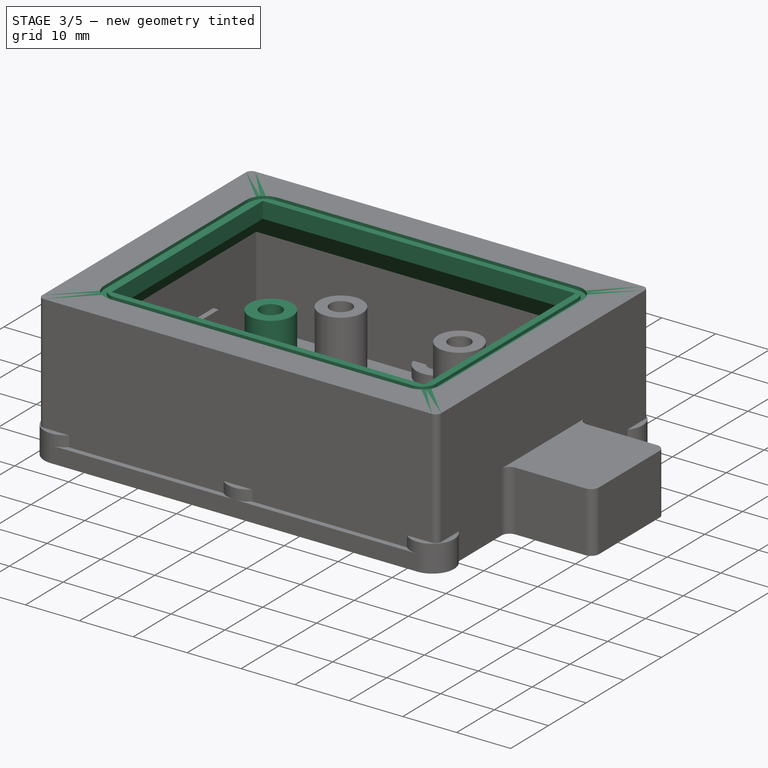
[diagram: stage 3 of 5 — iso view after this stage's code; geometry added in this stage tinted green]
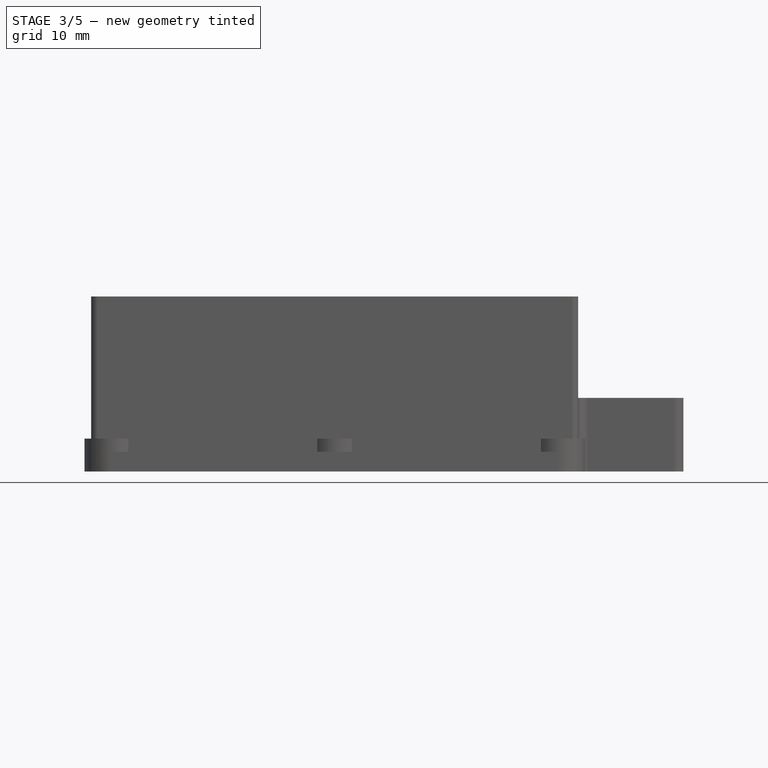
[diagram: stage 3 of 5 — front view after this stage's code; geometry added in this stage tinted green]
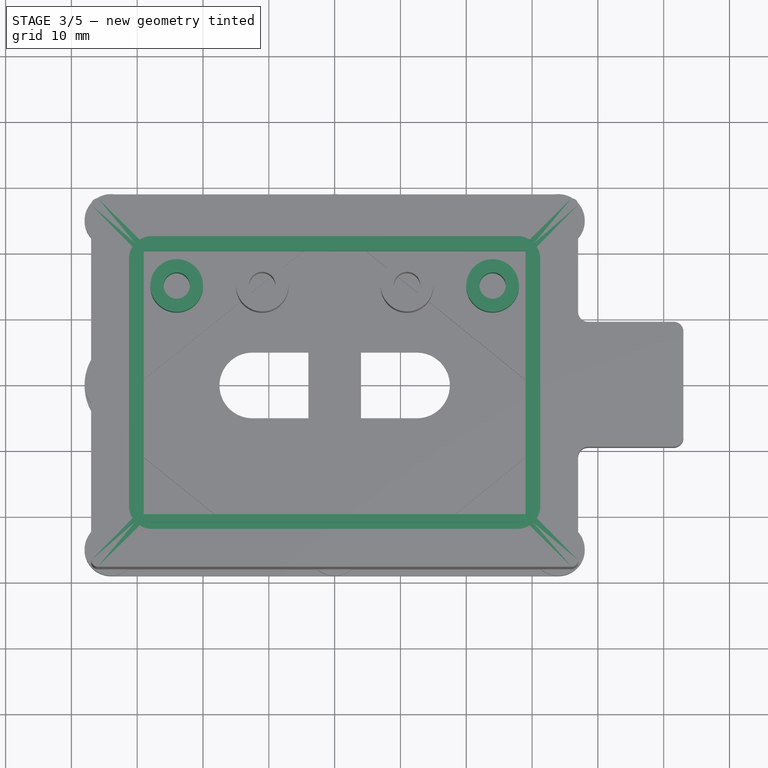
[diagram: stage 3 of 5 — top view after this stage's code; geometry added in this stage tinted green]
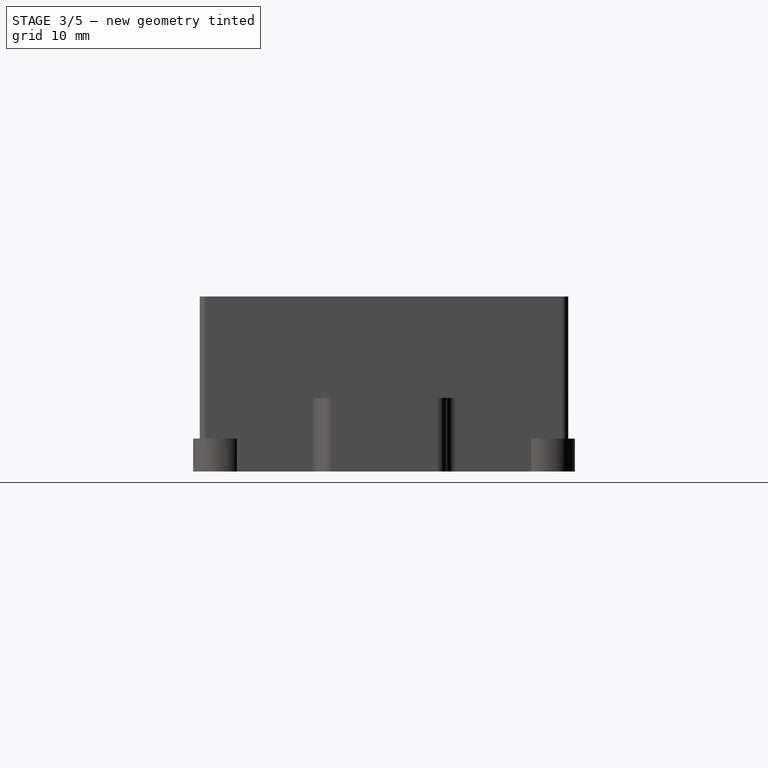
[diagram: stage 3 of 5 — right view after this stage's code; geometry added in this stage tinted green]
FEATURE [Sketcher::SketchObject] Sketch007  label="BoxBatHolderSketch"
  FullyConstrained = true
  MapMode = 5
  Support = -> [XY_Plane]
  expr: Constraints[10] = <<RAKTrackerSmallSheet>>.BoxInternalWidth
  expr: Constraints[14] = <<RAKTrackerSmallSheet>>.BatHolderHoleDia
  expr: Constraints[16] = <<RAKTrackerSmallSheet>>.BatHolderDia
  expr: Constraints[17] = <<RAKTrackerSmallSheet>>.BatWidth + 0.5mm + <<RAKTrackerSmallSheet>>.BatHolderDia / 2
  expr: Constraints[19] = <<RAKTrackerSmallSheet>>.BatHolderDia / 2 + 5mm
  expr: Constraints[20] = <<RAKTrackerSmallSheet>>.BatHolderDia / 2 + 5mm
  expr: Constraints[9] = <<RAKTrackerSmallSheet>>.BoxInternalLength
  sketch-geometry (8):
    g0: LineSegment StartX=-33 StartY=24 StartZ=0 EndX=33 EndY=24 EndZ=0
    g1: LineSegment StartX=33 StartY=24 StartZ=0 EndX=33 EndY=-24 EndZ=0
    g2: LineSegment StartX=33 StartY=-24 StartZ=0 EndX=-33 EndY=-24 EndZ=0
    g3: LineSegment StartX=-33 StartY=-24 StartZ=0 EndX=-33 EndY=24 EndZ=0
    g4: Circle CenterX=-24 CenterY=15 CenterZ=0 NormalX=0 NormalY=0 NormalZ=1 AngleXU=0 Radius=4
    g5: Circle CenterX=24 CenterY=15 CenterZ=0 NormalX=0 NormalY=0 NormalZ=1 AngleXU=0 Radius=4
    g6: Circle CenterX=-24 CenterY=15 CenterZ=0 NormalX=0 NormalY=0 NormalZ=1 AngleXU=0 Radius=2
    g7: Circle CenterX=24 CenterY=15 CenterZ=0 NormalX=0 NormalY=0 NormalZ=1 AngleXU=0 Radius=2
  constraints (21):
    c: Coincident(g0,g1)
    c: Coincident(g1,g2)
    c: Coincident(g2,g3)
    c: Coincident(g3,g0)
    c: Horizontal(g0)
    c: Horizontal(g2)
    c: Vertical(g1)
    c: Vertical(g3)
    c: Symmetric(g0,g1,g-1)
    c: DistanceX(g0,g0) = 66
    c: DistanceY(g1,g1) = 48
    c: Coincident(g6,g4)
    c: Coincident(g7,g5)
    c: Equal(g6,g7)
    c: Diameter(g6) = 4
    c: Equal(g4,g5)
    c: Diameter(g4) = 8
    c: DistanceY(g2,g4) = 39
    c: Horizontal(g5,g4)
    c: DistanceX(g2,g4) = 9
    c: DistanceX(g5,g0) = 9
FEATURE [PartDesign::Pad] Pad005  label="BoxBatHolder"
  BaseFeature = -> Pad004
  Direction = (0,0,1)
  Length = 11.6
  Length2 = 10
  Profile = -> Sketch007
  ReferenceAxis = -> Sketch007 [N_Axis]
  Type = 0
  expr: Length = <<RAKTrackerSmallSheet>>.BatHolderHeight
FEATURE [PartDesign::Plane] DatumPlane002  label="TopOfBoxDatum"
  Length = 104.199
  Placement = pos=(0,0,26.6) rot=(0,0,1;0rad)
  ResizeMode = 0
  Support = -> [XY_Plane]
  Width = 70.1986
  expr: .Placement.Base.z = <<RAKTrackerSmallSheet>>.BoxHeight
FEATURE [Sketcher::SketchObject] Sketch008  label="BoxLidHolesSketch"
  FullyConstrained = true
  MapMode = 5
  Placement = pos=(0,0,26.6) rot=(0,0,1;0rad)
  Support = -> [DatumPlane002]
  expr: Constraints[10] = <<RAKTrackerSmallSheet>>.BoxWidth
  expr: Constraints[19] = <<RAKTrackerSmallSheet>>.BoxScrewHoleDia
  expr: Constraints[25] = <<RAKTrackerSmallSheet>>.StrapHoleDistance
  expr: Constraints[26] = <<RAKTrackerSmallSheet>>.StrapHoleDistance
  expr: Constraints[27] = <<RAKTrackerSmallSheet>>.BoxScrewHoleDistance
  expr: Constraints[28] = <<RAKTrackerSmallSheet>>.BoxScrewHoleDistance
  expr: Constraints[9] = <<RAKTrackerSmallSheet>>.BoxLength
  sketch-geometry (12):
    g0: LineSegment StartX=-37 StartY=28 StartZ=0 EndX=37 EndY=28 EndZ=0
    g1: LineSegment StartX=37 StartY=28 StartZ=0 EndX=37 EndY=-28 EndZ=0
    g2: LineSegment StartX=37 StartY=-28 StartZ=0 EndX=-37 EndY=-28 EndZ=0
    g3: LineSegment StartX=-37 StartY=-28 StartZ=0 EndX=-37 EndY=28 EndZ=0
    g4: Circle CenterX=-34 CenterY=25 CenterZ=0 NormalX=0 NormalY=0 NormalZ=1 AngleXU=0 Radius=1.4
    g5: Circle CenterX=0 CenterY=25 CenterZ=0 NormalX=0 NormalY=0 NormalZ=1 AngleXU=0 Radius=1.4
    g6: Circle CenterX=34 CenterY=25 CenterZ=0 NormalX=0 NormalY=0 NormalZ=1 AngleXU=0 Radius=1.4
    g7: Circle CenterX=-34 CenterY=-25 CenterZ=0 NormalX=0 NormalY=0 NormalZ=1 AngleXU=0 Radius=1.4
    g8: Circle CenterX=0 CenterY=-25 CenterZ=0 NormalX=0 NormalY=0 NormalZ=1 AngleXU=0 Radius=1.4
    g9: Circle CenterX=34 CenterY=-25 CenterZ=0 NormalX=0 NormalY=0 NormalZ=1 AngleXU=0 Radius=1.4
    g10: Circle CenterX=-34 CenterY=0 CenterZ=0 NormalX=0 NormalY=0 NormalZ=1 AngleXU=0 Radius=1.4
    g11: Circle CenterX=34 CenterY=0 CenterZ=0 NormalX=0 NormalY=0 NormalZ=1 AngleXU=0 Radius=1.4
  constraints (35):
    c: Coincident(g0,g1)
    c: Coincident(g1,g2)
    c: Coincident(g2,g3)
    c: Coincident(g3,g0)
    c: Horizontal(g0)
    c: Horizontal(g2)
    c: Vertical(g1)
    c: Vertical(g3)
    c: Symmetric(g0,g1,g-1)
    c: DistanceX(g0,g0) = 74
    c: DistanceY(g1,g0) = 56
    c: Vertical(g7,g4)
    c: Vertical(g5,g8)
    c: Vertical(g6,g9)
    c: Equal(g5,g4)
    c: Equal(g5,g8)
    c: Equal(g5,g7)
    c: Equal(g5,g6)
    c: Equal(g5,g9)
    c: Diameter(g5) = 2.8
    c: Horizontal(g4,g5)
    c: Horizontal(g5,g6)
    c: Horizontal(g7,g8)
    c: Horizontal(g8,g9)
    c: PointOnObject(g5,g-2)
    c: DistanceX(g4,g5) = 34
    c: DistanceX(g5,g6) = 34
    c: DistanceY(g4,g0) = 3
    c: DistanceY(g2,g7) = 3
    c: PointOnObject(g10,g-1)
    c: PointOnObject(g11,g-1)
    c: Equal(g5,g10)
    c: Equal(g5,g11)
    c: Vertical(g4,g10)
    c: Vertical(g6,g11)
FEATURE [Sketcher::SketchObject] Sketch009  label="BoxCentreLidHolderSketch"
  FullyConstrained = true
  MapMode = 5
  Placement = pos=(0,0,0) rot=(1,0,0;1.5708rad)
  Support = -> [XZ_Plane]
  expr: Constraints[19] = <<RAKTrackerSmallSheet>>.BoxRimWidth
  expr: Constraints[21] = <<RAKTrackerSmallSheet>>.BoxRimHeight
  expr: Constraints[31] = <<RAKTrackerSmallSheet>>.BoxRimWidth
  expr: Constraints[32] = <<RAKTrackerSmallSheet>>.BoxRimHeight
  expr: Constraints[8] = <<RAKTrackerSmallSheet>>.BoxHeight
  expr: Constraints[9] = <<RAKTrackerSmallSheet>>.BoxInternalLength
  sketch-geometry (12):
    g0: LineSegment StartX=-33 StartY=0 StartZ=0 EndX=33 EndY=0 EndZ=0
    g1: LineSegment StartX=33 StartY=0 StartZ=0 EndX=33 EndY=26.6 EndZ=0
    g2: LineSegment StartX=33 StartY=26.6 StartZ=0 EndX=-33 EndY=26.6 EndZ=0
    g3: LineSegment StartX=-33 StartY=26.6 StartZ=0 EndX=-33 EndY=0 EndZ=0
    g4: LineSegment StartX=-33 StartY=26.6 StartZ=0 EndX=-29 EndY=26.6 EndZ=0
    g5: LineSegment StartX=-29 StartY=26.6 StartZ=0 EndX=-29 EndY=23.6 EndZ=0
    g6: LineSegment StartX=-29 StartY=23.6 StartZ=0 EndX=-33 EndY=18.833 EndZ=0
    g7: LineSegment StartX=-33 StartY=18.833 StartZ=0 EndX=-33 EndY=26.6 EndZ=0
    g8: LineSegment StartX=29 StartY=26.6 StartZ=0 EndX=33 EndY=26.6 EndZ=0
    g9: LineSegment StartX=29 StartY=26.6 StartZ=0 EndX=29 EndY=23.6 EndZ=0
    g10: LineSegment StartX=29 StartY=23.6 StartZ=0 EndX=33 EndY=18.833 EndZ=0
    g11: LineSegment StartX=33 StartY=18.833 StartZ=0 EndX=33 EndY=26.6 EndZ=0
  constraints (33):
    c: Coincident(g0,g1)
    c: Coincident(g1,g2)
    c: Coincident(g2,g3)
    c: Coincident(g3,g0)
    c: Horizontal(g0)
    c: Horizontal(g2)
    c: Vertical(g1)
    c: Vertical(g3)
    c: DistanceY(g3,g3) = 26.6
    c: DistanceX(g2,g1) = 66
    c: Symmetric(g0,g0,g-1)
    c: Coincident(g4,g2)
    c: PointOnObject(g4,g2)
    c: Coincident(g5,g4)
    c: Vertical(g5)
    c: Coincident(g6,g5)
    c: PointOnObject(g6,g3)
    c: Coincident(g7,g6)
    c: Coincident(g7,g4)
    c: DistanceX(g4,g4) = 4
    c: Angle(g6,g7) = 0.698132
    c: DistanceY(g5,g5) = 3
    c: PointOnObject(g8,g2)
    c: Coincident(g8,g1)
    c: Coincident(g9,g8)
    c: Coincident(g10,g9)
    c: PointOnObject(g10,g1)
    c: Coincident(g11,g8)
    c: Coincident(g10,g11)
    c: Vertical(g9)
    c: Angle(g11,g10) = 0.698132
    c: DistanceX(g8,g8) = 4
    c: DistanceY(g9,g8) = 3
FEATURE [PartDesign::Pad] Pad006  label="BoxCentreLidHolder"
  BaseFeature = -> Pad005
  Direction = (0,-1,-2e-16)
  Length = 48
  Length2 = 10
  Midplane = true
  Profile = -> Sketch009
  ReferenceAxis = -> Sketch009 [N_Axis]
  Type = 0
  expr: Length = <<RAKTrackerSmallSheet>>.BoxInternalWidth
FEATURE [Sketcher::SketchObject] Sketch010  label="BoxSealHolderSketch"
  FullyConstrained = true
  MapMode = 5
  Placement = pos=(-33,7.3e-15,-7.3e-15) rot=(-0.57735,0.57735,0.57735;4.18879rad)
  Support = -> [DatumPlane001]
  expr: Constraints[19] = <<RAKTrackerSmallSheet>>.BoxRimWidth
  expr: Constraints[21] = <<RAKTrackerSmallSheet>>.BoxRimHeight
  expr: Constraints[8] = <<RAKTrackerSmallSheet>>.BoxHeight
  expr: Constraints[9] = <<RAKTrackerSmallSheet>>.BoxInternalWidth
  sketch-geometry (12):
    g0: LineSegment StartX=24 StartY=0 StartZ=0 EndX=-24 EndY=0 EndZ=0
    g1: LineSegment StartX=-24 StartY=0 StartZ=0 EndX=-24 EndY=26.6 EndZ=0
    g2: LineSegment StartX=-24 StartY=26.6 StartZ=0 EndX=24 EndY=26.6 EndZ=0
    g3: LineSegment StartX=24 StartY=26.6 StartZ=0 EndX=24 EndY=0 EndZ=0
    g4: LineSegment StartX=-24 StartY=18.833 StartZ=0 EndX=-20 EndY=23.6 EndZ=0
    g5: LineSegment StartX=-20 StartY=23.6 StartZ=0 EndX=-20 EndY=26.6 EndZ=0
    g6: LineSegment StartX=-24 StartY=26.6 StartZ=0 EndX=-20 EndY=26.6 EndZ=0
    g7: LineSegment StartX=-24 StartY=26.6 StartZ=0 EndX=-24 EndY=18.833 EndZ=0
    g8: LineSegment StartX=24 StartY=26.6 StartZ=0 EndX=20 EndY=26.6 EndZ=0
    g9: LineSegment StartX=20 StartY=26.6 StartZ=0 EndX=20 EndY=23.6 EndZ=0
    g10: LineSegment StartX=20 StartY=23.6 StartZ=0 EndX=24 EndY=18.833 EndZ=0
    g11: LineSegment StartX=24 StartY=18.833 StartZ=0 EndX=24 EndY=26.6 EndZ=0
  constraints (33):
    c: Coincident(g0,g1)
    c: Coincident(g1,g2)
    c: Coincident(g2,g3)
    c: Coincident(g3,g0)
    c: Horizontal(g0)
    c: Horizontal(g2)
    c: Vertical(g1)
    c: Vertical(g3)
    c: DistanceY(g0,g1) = 26.6
    c: DistanceX(g1,g2) = 48
    c: Symmetric(g0,g0,g-1)
    c: PointOnObject(g4,g1)
    c: Coincident(g5,g4)
    c: PointOnObject(g5,g2)
    c: Vertical(g5)
    c: Coincident(g6,g1)
    c: Coincident(g6,g5)
    c: Coincident(g7,g6)
    c: Coincident(g7,g4)
    c: DistanceX(g6,g6) = 4
    c: Angle(g4,g7) = 0.698132
    c: DistanceY(g5,g5) = 3
    c: Coincident(g8,g2)
    c: PointOnObject(g8,g2)
    c: Coincident(g9,g8)
    c: Coincident(g10,g9)
    c: PointOnObject(g10,g3)
    c: Coincident(g11,g10)
    c: Coincident(g11,g8)
    c: Vertical(g9)
    c: Angle(g11,g10) = 0.698132
    c: Equal(g6,g8)
    c: Equal(g5,g9)
FEATURE [PartDesign::Pad] Pad007  label="BoxSealHolder"
  BaseFeature = -> Pad006
  Direction = (-1,4e-16,-2e-16)
  Length = 66
  Length2 = 10
  Profile = -> Sketch010
  ReferenceAxis = -> Sketch010 [N_Axis]
  Reversed = true
  Type = 0
  expr: Length = <<RAKTrackerSmallSheet>>.BoxInternalLength
FEATURE [Sketcher::SketchObject] Sketch011  label="BoxSealPocketSketch"
  FullyConstrained = true
  MapMode = 5
  Placement = pos=(0,0,26.6) rot=(0,0,1;0rad)
  Support = -> [DatumPlane002]
  expr: Constraints[10] = <<RAKTrackerSmallSheet>>.BoxInternalWidth - 8mm
  expr: Constraints[35] = <<RAKTrackerSmallSheet>>.SealWidth
  expr: Constraints[44] = <<RAKTrackerSmallSheet>>.SealCornerRadius
  expr: Constraints[9] = <<RAKTrackerSmallSheet>>.BoxInternalLength - 2 * <<RAKTrackerSmallSheet>>.BoxRimWidth
  sketch-geometry (20):
    g0: LineSegment StartX=-29 StartY=20 StartZ=0 EndX=29 EndY=20 EndZ=0
    g1: LineSegment StartX=29 StartY=20 StartZ=0 EndX=29 EndY=-20 EndZ=0
    g2: LineSegment StartX=29 StartY=-20 StartZ=0 EndX=-29 EndY=-20 EndZ=0
    g3: LineSegment StartX=-29 StartY=-20 StartZ=0 EndX=-29 EndY=20 EndZ=0
    g4: LineSegment StartX=-27.75 StartY=21.25 StartZ=0 EndX=27.75 EndY=21.25 EndZ=0
    g5: LineSegment StartX=30.25 StartY=18.75 StartZ=0 EndX=30.25 EndY=-18.75 EndZ=0
    g6: LineSegment StartX=27.75 StartY=-21.25 StartZ=0 EndX=-27.75 EndY=-21.25 EndZ=0
    g7: LineSegment StartX=-30.25 StartY=-18.75 StartZ=0 EndX=-30.25 EndY=18.75 EndZ=0
    g8: LineSegment StartX=-27.75 StartY=22.25 StartZ=0 EndX=27.75 EndY=22.25 EndZ=0
    g9: LineSegment StartX=31.25 StartY=18.75 StartZ=0 EndX=31.25 EndY=-18.75 EndZ=0
    g10: LineSegment StartX=27.75 StartY=-22.25 StartZ=0 EndX=-27.75 EndY=-22.25 EndZ=0
    g11: LineSegment StartX=-31.25 StartY=-18.75 StartZ=0 EndX=-31.25 EndY=18.75 EndZ=0
    g12: ArcOfCircle CenterX=-27.75 CenterY=18.75 CenterZ=0 NormalX=0 NormalY=0 NormalZ=1 AngleXU=0 Radius=3.5 StartAngle=1.5708 EndAngle=3.14159
    g13: ArcOfCircle CenterX=-27.75 CenterY=18.75 CenterZ=0 NormalX=0 NormalY=0 NormalZ=1 AngleXU=0 Radius=2.5 StartAngle=1.5708 EndAngle=3.14159
    g14: ArcOfCircle CenterX=-27.75 CenterY=-18.75 CenterZ=0 NormalX=0 NormalY=0 NormalZ=1 AngleXU=0 Radius=3.5 StartAngle=3.14159 EndAngle=4.71239
    g15: ArcOfCircle CenterX=27.75 CenterY=-18.75 CenterZ=0 NormalX=0 NormalY=0 NormalZ=1 AngleXU=0 Radius=3.5 StartAngle=4.71239 EndAngle=6.28319
    g16: ArcOfCircle CenterX=27.75 CenterY=-18.75 CenterZ=0 NormalX=0 NormalY=0 NormalZ=1 AngleXU=0 Radius=2.5 StartAngle=4.71239 EndAngle=6.28319
    g17: ArcOfCircle CenterX=-27.75 CenterY=-18.75 CenterZ=0 NormalX=0 NormalY=0 NormalZ=1 AngleXU=0 Radius=2.5 StartAngle=3.14159 EndAngle=4.71239
    g18: ArcOfCircle CenterX=27.75 CenterY=18.75 CenterZ=0 NormalX=0 NormalY=0 NormalZ=1 AngleXU=0 Radius=2.5 StartAngle=3e-16 EndAngle=1.5708
    g19: ArcOfCircle CenterX=27.75 CenterY=18.75 CenterZ=0 NormalX=0 NormalY=0 NormalZ=1 AngleXU=0 Radius=3.5 StartAngle=-9e-16 EndAngle=1.5708
  constraints (49):
    c: Coincident(g0,g1)
    c: Coincident(g1,g2)
    c: Coincident(g2,g3)
    c: Coincident(g3,g0)
    c: Horizontal(g0)
    c: Horizontal(g2)
    c: Vertical(g1)
    c: Vertical(g3)
    c: Symmetric(g0,g1,g-1)
    c: DistanceX(g0,g0) = 58
    c: DistanceY(g1,g0) = 40
    c: Horizontal(g4)
    c: Horizontal(g6)
    c: Vertical(g5)
    c: Vertical(g7)
    c: Horizontal(g8)
    c: Horizontal(g10)
    c: Vertical(g9)
    c: Vertical(g11)
    c: Tangent(g11,g12) = 1.5708
    c: Tangent(g8,g12) = 1.5708
    c: Tangent(g7,g13) = 1.5708
    c: Tangent(g4,g13) = 1.5708
    c: Tangent(g11,g14) = 1.5708
    c: Tangent(g10,g14) = 1.5708
    c: Tangent(g10,g15) = 1.5708
    c: Tangent(g9,g15) = 1.5708
    c: Tangent(g6,g16) = 1.5708
    c: Tangent(g5,g16) = 1.5708
    c: Tangent(g6,g17) = 1.5708
    c: Tangent(g7,g17) = 1.5708
    c: Tangent(g4,g18) = 1.5708
    c: Tangent(g5,g18) = 1.5708
    c: Tangent(g8,g19) = 1.5708
    c: Tangent(g9,g19) = 1.5708
    c: DistanceY(g4,g8) = 1
    c: DistanceX(g7,g2) = 1.25
    c: Symmetric(g13,g16,g-1)
    c: Symmetric(g15,g12,g-1)
    c: DistanceX(g5,g9) = 1
    c: DistanceY(g0,g4) = 1.25
    c: Equal(g13,g17)
    c: Equal(g13,g16)
    c: Equal(g13,g18)
    c: Radius(g13) = 2.5
    c: Vertical(g8,g4)
    c: Vertical(g8,g4)
    c: Horizontal(g7,g11)
    c: Horizontal(g7,g11)
FEATURE [PartDesign::Pocket] Pocket002  label="BoxSealPocket"
  BaseFeature = -> Pad007
  Direction = (0,0,-1)
  Length = 0.6
  Length2 = 5
  Profile = -> Sketch011
  ReferenceAxis = -> Sketch011 [N_Axis]
  Refine = true
  Type = 0
  expr: Length = <<RAKTrackerSmallSheet>>.SealDepth
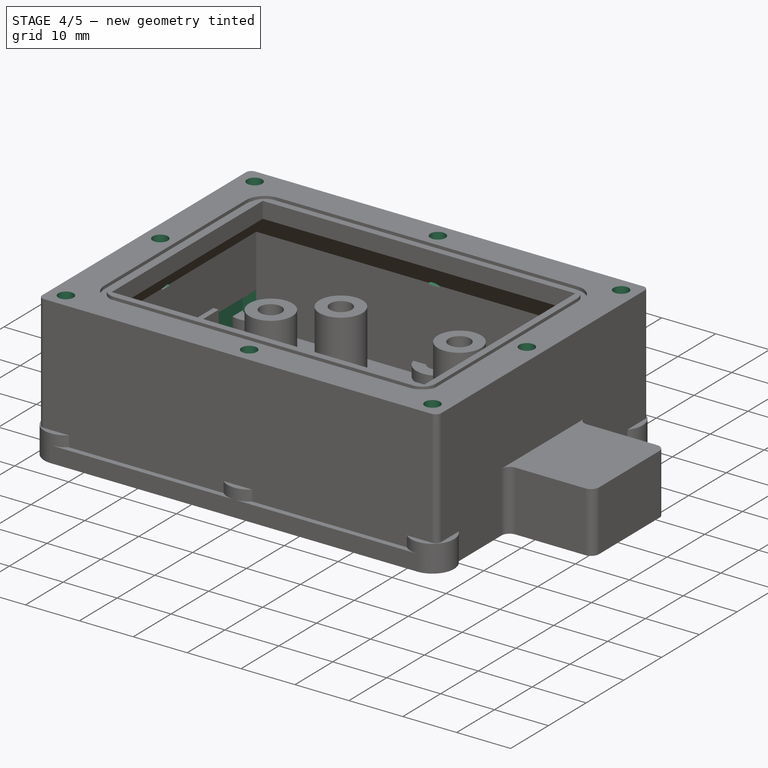
[diagram: stage 4 of 5 — iso view after this stage's code; geometry added in this stage tinted green]
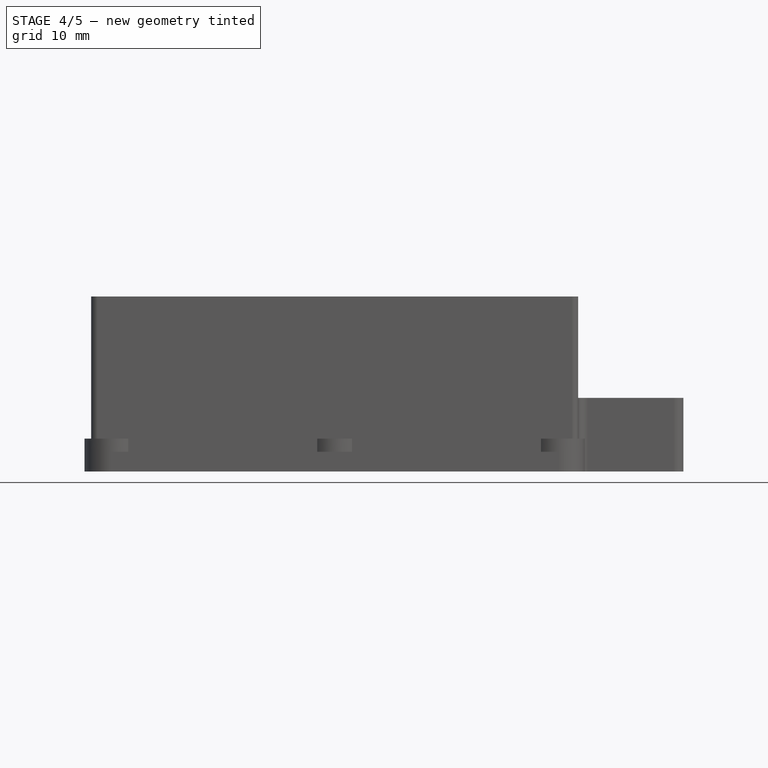
[diagram: stage 4 of 5 — front view after this stage's code; geometry added in this stage tinted green]
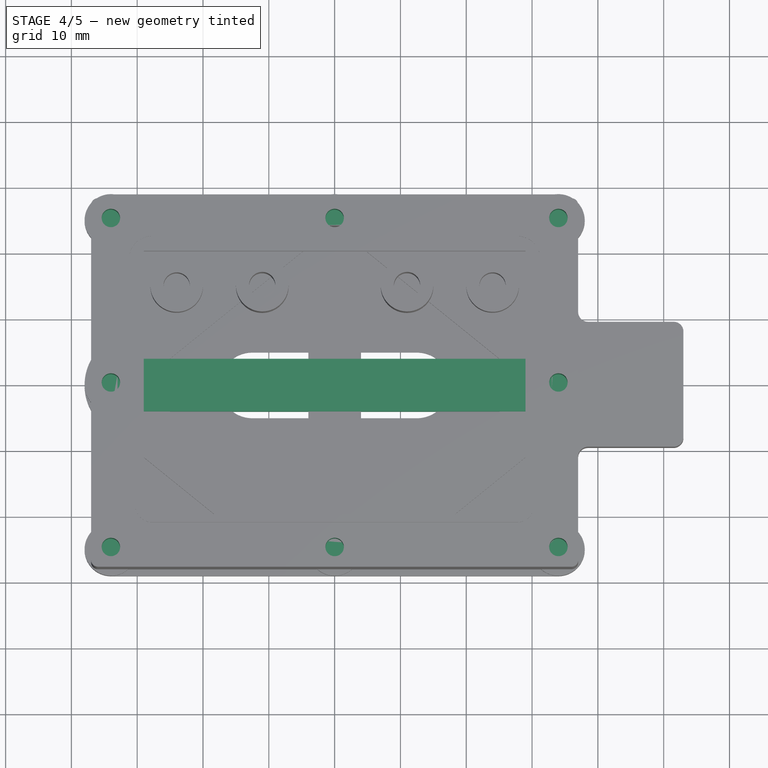
[diagram: stage 4 of 5 — top view after this stage's code; geometry added in this stage tinted green]
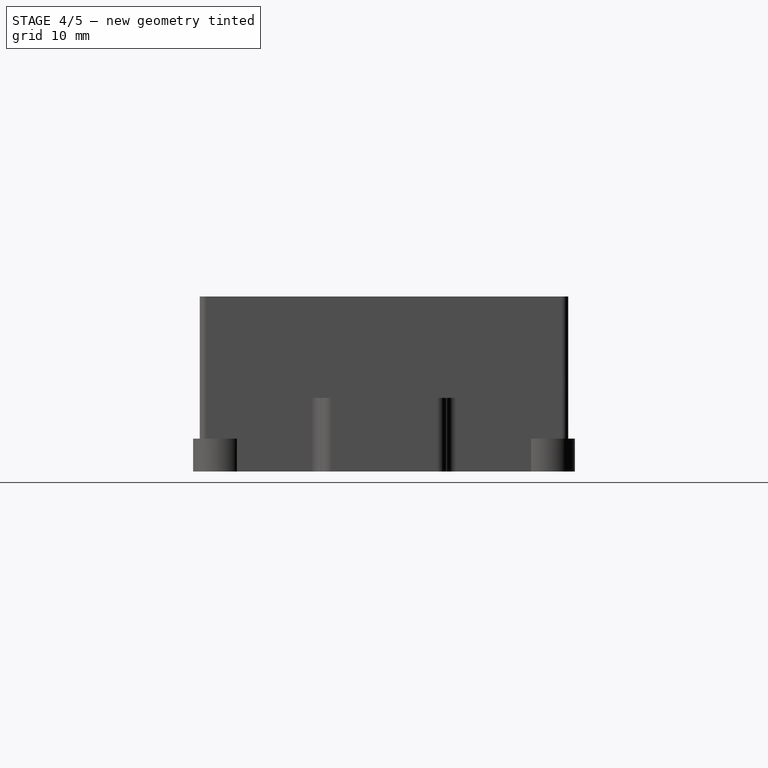
[diagram: stage 4 of 5 — right view after this stage's code; geometry added in this stage tinted green]
FEATURE [PartDesign::Body] Body001  label="Lid"
  Group = -> [Sketch012,Pad008,Sketch013,Hole]
  Origin = -> Origin001
  Placement = pos=(0,0,31) rot=(1,0,0;3.14159rad)
  Tip = -> Hole
FEATURE [Sketcher::SketchObject] Sketch014  label="StrapBaseSketch"
  FullyConstrained = true
  MapMode = 5
  Support = -> [XY_Plane002]
  expr: Constraints[17] = <<RAKTrackerSmallSheet>>.StrapHoleDistance * 2 + 2 * <<RAKTrackerSmallSheet>>.BoxWallThicknessWidth
  sketch-geometry (8):
    g0: ArcOfCircle CenterX=-34 CenterY=0 CenterZ=0 NormalX=0 NormalY=0 NormalZ=1 AngleXU=0 Radius=4 StartAngle=1.5708 EndAngle=4.71239
    g1: ArcOfCircle CenterX=34 CenterY=-6e-16 CenterZ=0 NormalX=0 NormalY=0 NormalZ=1 AngleXU=0 Radius=4 StartAngle=4.71239 EndAngle=7.85398
    g2: LineSegment StartX=-34 StartY=-4 StartZ=0 EndX=34 EndY=-4 EndZ=0
    g3: LineSegment StartX=34 StartY=4 StartZ=0 EndX=-34 EndY=4 EndZ=0
    g4: LineSegment StartX=-38 StartY=10 StartZ=0 EndX=38 EndY=10 EndZ=0
    g5: LineSegment StartX=38 StartY=10 StartZ=0 EndX=38 EndY=-10 EndZ=0
    g6: LineSegment StartX=38 StartY=-10 StartZ=0 EndX=-38 EndY=-10 EndZ=0
    g7: LineSegment StartX=-38 StartY=-10 StartZ=0 EndX=-38 EndY=10 EndZ=0
  constraints (20):
    c: Tangent(g0,g2) = -1.5708
    c: Tangent(g2,g1) = -1.5708
    c: Tangent(g1,g3) = -1.5708
    c: Tangent(g3,g0) = -1.5708
    c: Equal(g0,g1)
    c: PointOnObject(g0,g-1)
    c: Symmetric(g0,g1,g-1)
    c: DistanceY(g0,g0) = 8
    c: Coincident(g4,g5)
    c: Coincident(g5,g6)
    c: Coincident(g6,g7)
    c: Coincident(g7,g4)
    c: Horizontal(g4)
    c: Horizontal(g6)
    c: Vertical(g5)
    c: Vertical(g7)
    c: Symmetric(g4,g6,g-1)
    c: DistanceX(g4,g4) = 76
    c: Tangent(g1,g5)
    c: DistanceY(g5,g4) = 20
FEATURE [PartDesign::Pad] Pad009  label="StrapBase"
  Direction = (0,0,1)
  Length = 4
  Length2 = 10
  Profile = -> Sketch014
  ReferenceAxis = -> Sketch014 [N_Axis]
  Type = 0
FEATURE [PartDesign::Body] Body002  label="Strap"
  Group = -> [Sketch014,Pad009,Sketch015,Pad010,Hole001]
  Origin = -> Origin002
  Placement = pos=(0,25,47) rot=(0,0,1;0rad)
  Tip = -> Hole001
FEATURE [Sketcher::SketchObject] Sketch016  label="BatHolderSketch"
  FullyConstrained = true
  MapMode = 5
  Support = -> [XY_Plane003]
  expr: Constraints[7] = <<RAKTrackerSmallSheet>>.BatHolderDia
  expr: Constraints[8] = <<RAKTrackerSmallSheet>>.BoxWidth / 2
  sketch-geometry (4):
    g0: ArcOfCircle CenterX=0 CenterY=0 CenterZ=0 NormalX=0 NormalY=0 NormalZ=1 AngleXU=0 Radius=4 StartAngle=1.5708 EndAngle=4.71239
    g1: ArcOfCircle CenterX=28 CenterY=0 CenterZ=0 NormalX=0 NormalY=0 NormalZ=1 AngleXU=0 Radius=4 StartAngle=4.71239 EndAngle=7.85398
    g2: LineSegment StartX=-7e-16 StartY=-4 StartZ=0 EndX=28 EndY=-4 EndZ=0
    g3: LineSegment StartX=28 StartY=4 StartZ=0 EndX=0 EndY=4 EndZ=0
  constraints (9):
    c: Tangent(g0,g2) = -1.5708
    c: Tangent(g2,g1) = -1.5708
    c: Tangent(g1,g3) = -1.5708
    c: Tangent(g3,g0) = -1.5708
    c: Equal(g0,g1)
    c: Coincident(g0,g-1)
    c: PointOnObject(g1,g-1)
    c: DistanceY(g0,g0) = 8
    c: DistanceX(g0,g1) = 28
FEATURE [PartDesign::Pad] Pad011  label="BatHolder001"
  Direction = (0,0,1)
  Length = 2
  Length2 = 10
  Profile = -> Sketch016
  ReferenceAxis = -> Sketch016 [N_Axis]
  Type = 0
FEATURE [Sketcher::SketchObject] Sketch017
  FullyConstrained = true
  MapMode = 5
  Support = -> [XY_Plane003]
  sketch-geometry (1):
    g0: Circle CenterX=0 CenterY=0 CenterZ=0 NormalX=0 NormalY=0 NormalZ=1 AngleXU=0 Radius=1.6
  constraints (2):
    c: Coincident(g0,g-1)
    c: Diameter(g0) = 3.2
FEATURE [PartDesign::Hole] Hole002
  BaseFeature = -> Pad011
  CustomThreadClearance = 0
  Depth = 25
  DepthType = 0
  Diameter = 3.4
  DrillForDepth = false
  DrillPoint = 1
  DrillPointAngle = 118
  HoleCutCountersinkAngle = 90
  HoleCutCustomValues = false
  HoleCutDepth = 0
  HoleCutDiameter = 6.7
  HoleCutType = 7
  ModelThread = false
  Profile = -> Sketch017
  Reversed = true
  Tapered = false
  TaperedAngle = 90
  ThreadClass = 0
  ThreadDepth = 25
  ThreadDepthType = 0
  ThreadDirection = 0
  ThreadFit = 0
  ThreadSize = 9
  ThreadType = 1
  Threaded = false
  UseCustomThreadClearance = false
FEATURE [PartDesign::Body] Body003  label="BatHolder"
  Group = -> [Sketch016,Pad011,Sketch017,Hole002]
  Origin = -> Origin003
  Placement = pos=(-25.2941,20.8296,16) rot=(0,0,1;4.71239rad)
  Tip = -> Hole002
FEATURE [Sketcher::SketchObject] Sketch018
  FullyConstrained = true
  MapMode = 5
  Placement = pos=(-33,7.3e-15,-7.3e-15) rot=(-0.57735,0.57735,0.57735;4.18879rad)
  Support = -> [DatumPlane001]
  expr: Constraints[11] = <<RAKTrackerSmallSheet>>.AntWidth
  expr: Constraints[12] = <<RAKTrackerSmallSheet>>.BoxInternalWidth
  expr: Constraints[13] = <<RAKTrackerSmallSheet>>.BoxFloorHeight
  sketch-geometry (5):
    g0: LineSegment StartX=-24 StartY=9.1 StartZ=0 EndX=24 EndY=9.1 EndZ=0
    g1: LineSegment StartX=24 StartY=9.1 StartZ=0 EndX=24 EndY=1.6 EndZ=0
    g2: LineSegment StartX=24 StartY=1.6 StartZ=0 EndX=-24 EndY=1.6 EndZ=0
    g3: LineSegment StartX=-24 StartY=1.6 StartZ=0 EndX=-24 EndY=9.1 EndZ=0
    g4: LineSegment StartX=0 StartY=0 StartZ=0 EndX=0 EndY=1.6 EndZ=0
  constraints (14):
    c: Coincident(g0,g1)
    c: Coincident(g1,g2)
    c: Coincident(g2,g3)
    c: Coincident(g3,g0)
    c: Horizontal(g0)
    c: Vertical(g1)
    c: Vertical(g3)
    c: Coincident(g4,g-1)
    c: PointOnObject(g4,g2)
    c: Vertical(g4)
    c: Symmetric(g1,g2,g-2)
    c: DistanceY(g2,g0) = 7.5
    c: DistanceX(g0,g0) = 48
    c: DistanceY(g4,g4) = 1.6
FEATURE [PartDesign::Pocket] Pocket003  label="BoxAntPocket"
  BaseFeature = -> Pocket002
  Direction = (1,-4e-16,2e-16)
  Length = 2.5
  Length2 = 5
  Profile = -> Sketch018
  ReferenceAxis = -> Sketch018 [N_Axis]
  Reversed = true
  Type = 0
  expr: Length = <<RAKTrackerSmallSheet>>.AntHeight
FEATURE [PartDesign::Pocket] Pocket004  label="boxLidHoles"
  BaseFeature = -> Pocket003
  Direction = (0,0,-1)
  Length = 8
  Length2 = 5
  Profile = -> Sketch008
  ReferenceAxis = -> Sketch008 [N_Axis]
  Type = 0
  expr: Length = <<RAKTrackerSmallSheet>>.BoxScrewHeight
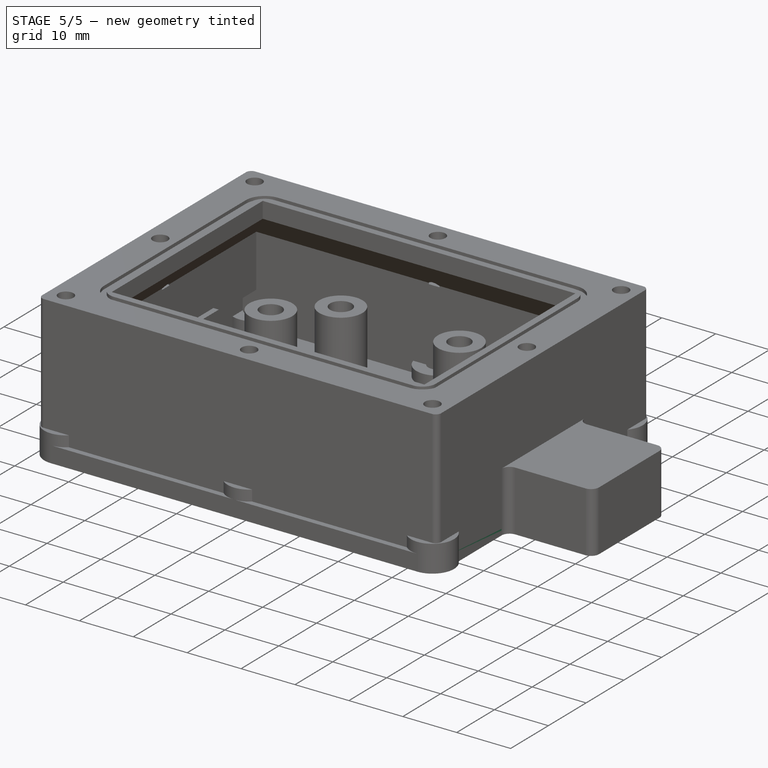
[diagram: stage 5 of 5 — iso view after this stage's code; geometry added in this stage tinted green]
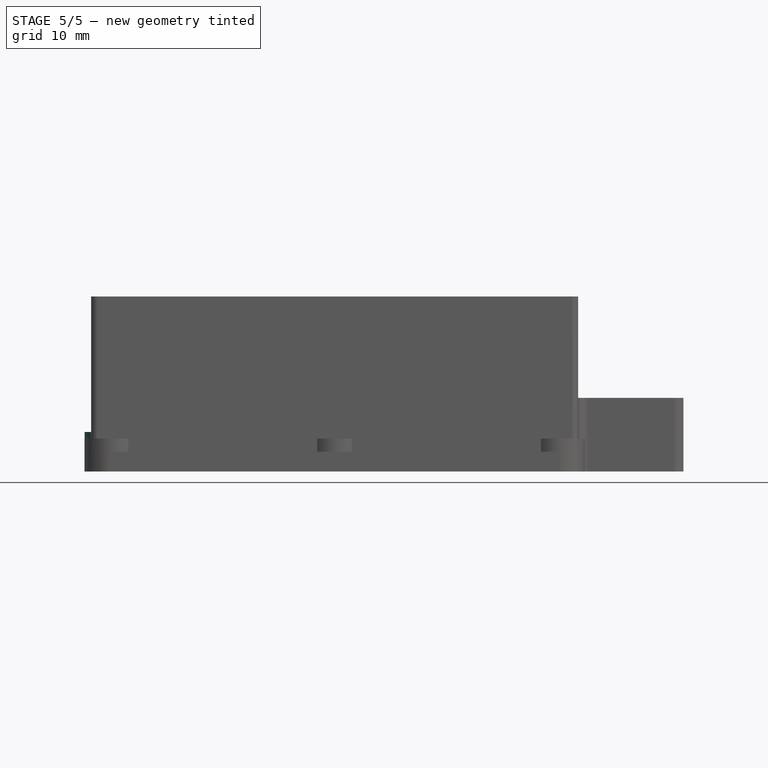
[diagram: stage 5 of 5 — front view after this stage's code; geometry added in this stage tinted green]
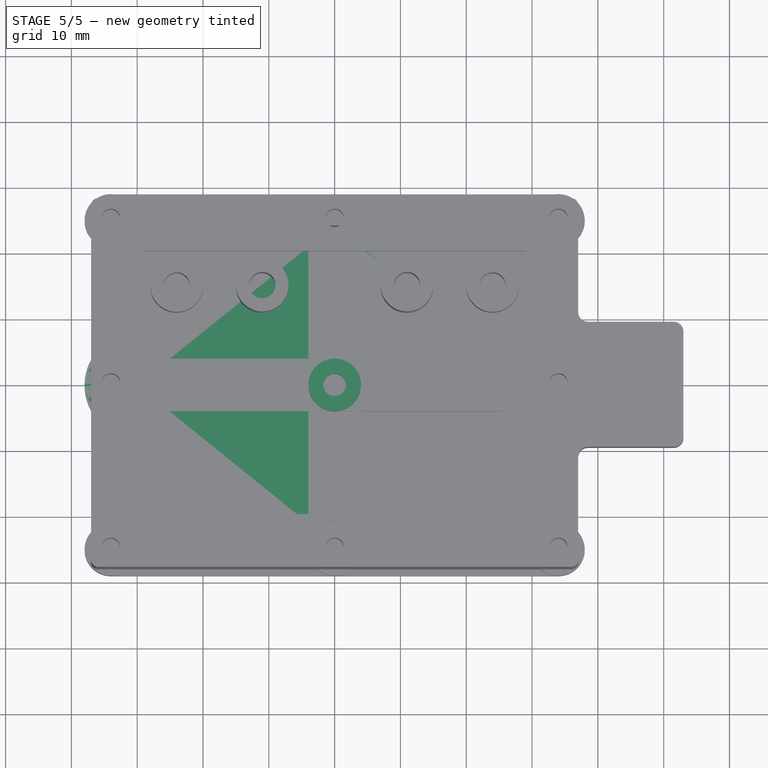
[diagram: stage 5 of 5 — top view after this stage's code; geometry added in this stage tinted green]
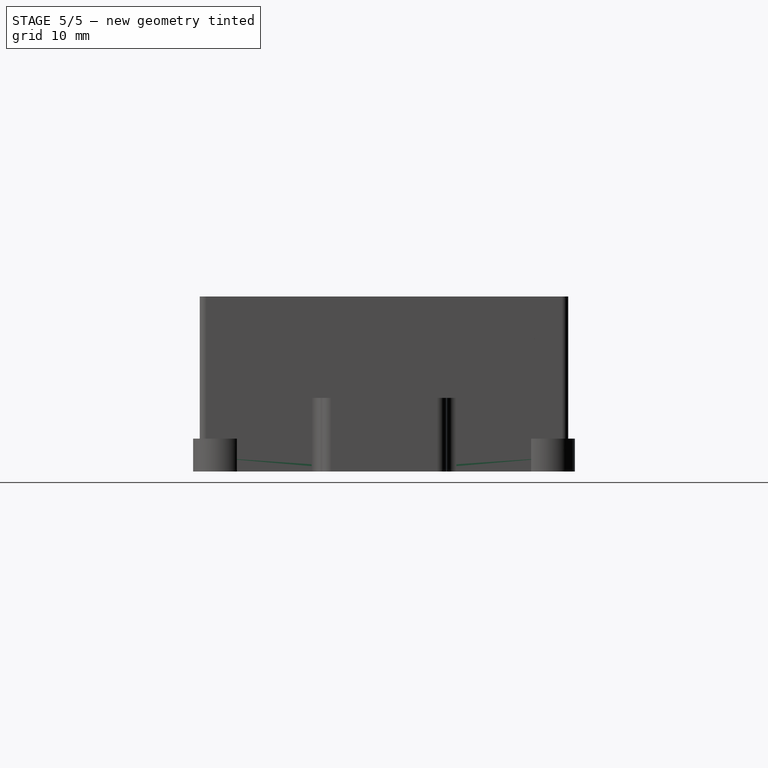
[diagram: stage 5 of 5 — right view after this stage's code; geometry added in this stage tinted green]
FEATURE [Sketcher::SketchObject] Sketch012  label="LidBaseSketch"
  FullyConstrained = true
  MapMode = 5
  Support = -> [XY_Plane001]
  expr: Constraints[26] = <<RAKTrackerSmallSheet>>.BoxCornerRadius
  expr: Constraints[38] = <<RAKTrackerSmallSheet>>.LidScrewHoleDia
  expr: Constraints[39] = <<RAKTrackerSmallSheet>>.StrapHoleDistance
  expr: Constraints[40] = <<RAKTrackerSmallSheet>>.StrapHoleDistance
  expr: Constraints[41] = <<RAKTrackerSmallSheet>>.BoxScrewHoleDistance
  expr: Constraints[42] = <<RAKTrackerSmallSheet>>.BoxScrewHoleDistance
  expr: Constraints[5] = <<RAKTrackerSmallSheet>>.BoxLength
  expr: Constraints[6] = <<RAKTrackerSmallSheet>>.BoxWidth
  sketch-geometry (18):
    g0: LineSegment StartX=-36 StartY=28 StartZ=0 EndX=36 EndY=28 EndZ=0
    g1: LineSegment StartX=37 StartY=27 StartZ=0 EndX=37 EndY=-27 EndZ=0
    g2: LineSegment StartX=36 StartY=-28 StartZ=0 EndX=-36 EndY=-28 EndZ=0
    g3: LineSegment StartX=-37 StartY=-27 StartZ=0 EndX=-37 EndY=27 EndZ=0
    g4: ArcOfCircle CenterX=-36 CenterY=27 CenterZ=0 NormalX=0 NormalY=0 NormalZ=1 AngleXU=0 Radius=1 StartAngle=1.5708 EndAngle=3.14159
    g5: GeomPoint X=-37 Y=28 Z=0
    g6: ArcOfCircle CenterX=36 CenterY=27 CenterZ=0 NormalX=0 NormalY=0 NormalZ=1 AngleXU=0 Radius=1 StartAngle=8e-16 EndAngle=1.5708
    g7: GeomPoint X=37 Y=28 Z=0
    g8: ArcOfCircle CenterX=36 CenterY=-27 CenterZ=0 NormalX=0 NormalY=0 NormalZ=1 AngleXU=0 Radius=1 StartAngle=4.71239 EndAngle=6.28319
    g9: GeomPoint X=37 Y=-28 Z=0
    g10: ArcOfCircle CenterX=-36 CenterY=-27 CenterZ=0 NormalX=0 NormalY=0 NormalZ=1 AngleXU=0 Radius=1 StartAngle=3.14159 EndAngle=4.71239
    g11: GeomPoint X=-37 Y=-28 Z=0
    g12: Circle CenterX=-34 CenterY=25 CenterZ=0 NormalX=0 NormalY=0 NormalZ=1 AngleXU=0 Radius=1.75
    g13: Circle CenterX=0 CenterY=25 CenterZ=0 NormalX=0 NormalY=0 NormalZ=1 AngleXU=0 Radius=1.75
    g14: Circle CenterX=34 CenterY=25 CenterZ=0 NormalX=0 NormalY=0 NormalZ=1 AngleXU=0 Radius=1.75
    g15: Circle CenterX=-34 CenterY=-25 CenterZ=0 NormalX=0 NormalY=0 NormalZ=1 AngleXU=0 Radius=1.75
    g16: Circle CenterX=0 CenterY=-25 CenterZ=0 NormalX=0 NormalY=0 NormalZ=1 AngleXU=0 Radius=1.75
    g17: Circle CenterX=34 CenterY=-25 CenterZ=0 NormalX=0 NormalY=0 NormalZ=1 AngleXU=0 Radius=1.75
  constraints (45):
    c: Horizontal(g0)
    c: Horizontal(g2)
    c: Vertical(g1)
    c: Vertical(g3)
    c: Symmetric(g5,g9,g-1)
    c: DistanceX(g5,g7) = 74
    c: DistanceY(g9,g7) = 56
    c: PointOnObject(g5,g3)
    c: PointOnObject(g5,g0)
    c: Tangent(g3,g4) = 1.5708
    c: Tangent(g0,g4) = 1.5708
    c: PointOnObject(g7,g0)
    c: PointOnObject(g7,g1)
    c: Tangent(g0,g6) = 1.5708
    c: Tangent(g1,g6) = 1.5708
    c: PointOnObject(g9,g1)
    c: PointOnObject(g9,g2)
    c: Tangent(g1,g8) = 1.5708
    c: Tangent(g2,g8) = 1.5708
    c: PointOnObject(g11,g2)
    c: PointOnObject(g11,g3)
    c: Tangent(g2,g10) = 1.5708
    c: Tangent(g3,g10) = 1.5708
    c: Equal(g4,g6)
    c: Equal(g4,g8)
    c: Equal(g4,g10)
    c: Radius(g4) = 1
    c: PointOnObject(g13,g-2)
    c: PointOnObject(g16,g-2)
    c: Horizontal(g12,g13)
    c: Horizontal(g13,g14)
    c: Horizontal(g15,g16)
    c: Horizontal(g16,g17)
    c: Equal(g12,g13)
    c: Equal(g12,g14)
    c: Equal(g12,g17)
    c: Equal(g12,g16)
    c: Equal(g12,g15)
    c: Diameter(g12) = 3.5
    c: DistanceX(g12,g13) = 34
    c: DistanceX(g13,g14) = 34
    c: DistanceY(g12,g0) = 3
    c: DistanceY(g2,g15) = 3
    c: Vertical(g12,g15)
    c: Vertical(g14,g17)
FEATURE [PartDesign::Pad] Pad008  label="LidBase"
  Direction = (0,0,1)
  Length = 2.2
  Length2 = 10
  Profile = -> Sketch012
  ReferenceAxis = -> Sketch012 [N_Axis]
  Type = 0
  expr: Length = <<RAKTrackerSmallSheet>>.LidHeight
FEATURE [Sketcher::SketchObject] Sketch013  label="LidMidScrewHoleSketch"
  FullyConstrained = true
  MapMode = 5
  Support = -> [XY_Plane001]
  expr: Constraints[3] = <<RAKTrackerSmallSheet>>.LidScrewHoleDia
  expr: Constraints[4] = <<RAKTrackerSmallSheet>>.StrapHoleDistance
  expr: Constraints[5] = <<RAKTrackerSmallSheet>>.StrapHoleDistance
  sketch-geometry (2):
    g0: Circle CenterX=-34 CenterY=0 CenterZ=0 NormalX=0 NormalY=0 NormalZ=1 AngleXU=0 Radius=1.75
    g1: Circle CenterX=34 CenterY=0 CenterZ=0 NormalX=0 NormalY=0 NormalZ=1 AngleXU=0 Radius=1.75
  constraints (6):
    c: PointOnObject(g0,g-1)
    c: PointOnObject(g1,g-1)
    c: Equal(g0,g1)
    c: Diameter(g0) = 3.5
    c: DistanceX(g0,g-1) = 34
    c: DistanceX(g-1,g1) = 34
FEATURE [PartDesign::Hole] Hole  label="LidMidScrewHole"
  BaseFeature = -> Pad008
  CustomThreadClearance = 0
  Depth = 25
  DepthType = 0
  Diameter = 3.6
  DrillForDepth = false
  DrillPoint = 1
  DrillPointAngle = 118
  HoleCutCountersinkAngle = 90
  HoleCutCustomValues = false
  HoleCutDepth = 0
  HoleCutDiameter = 6.7
  HoleCutType = 7
  ModelThread = false
  Profile = -> Sketch013
  Reversed = true
  Tapered = false
  TaperedAngle = 90
  ThreadClass = 0
  ThreadDepth = 25
  ThreadDepthType = 0
  ThreadDirection = 0
  ThreadFit = 2
  ThreadSize = 9
  ThreadType = 1
  Threaded = false
  UseCustomThreadClearance = false
FEATURE [Sketcher::SketchObject] Sketch015  label="StrapHolesSketch"
  FullyConstrained = true
  MapMode = 5
  Support = -> [XY_Plane002]
  expr: Constraints[3] = <<RAKTrackerSmallSheet>>.StrapHoleDistance
  expr: Constraints[4] = <<RAKTrackerSmallSheet>>.StrapHoleDistance
  sketch-geometry (3):
    g0: Circle CenterX=0 CenterY=0 CenterZ=0 NormalX=0 NormalY=0 NormalZ=1 AngleXU=0 Radius=4
    g1: Circle CenterX=34 CenterY=0 CenterZ=0 NormalX=0 NormalY=0 NormalZ=1 AngleXU=0 Radius=4
    g2: Circle CenterX=-34 CenterY=0 CenterZ=0 NormalX=0 NormalY=0 NormalZ=1 AngleXU=0 Radius=4
  constraints (8):
    c: Coincident(g0,g-1)
    c: PointOnObject(g1,g-1)
    c: PointOnObject(g2,g-1)
    c: DistanceX(g2,g0) = 34
    c: DistanceX(g0,g1) = 34
    c: Equal(g1,g0)
    c: Equal(g1,g2)
    c: Diameter(g1) = 8
FEATURE [PartDesign::Pad] Pad010  label="StrapOffsets"
  BaseFeature = -> Pad009
  Direction = (0,0,1)
  Length = 6
  Length2 = 10
  Profile = -> Sketch015
  ReferenceAxis = -> Sketch015 [N_Axis]
  Type = 0
  expr: Length = <<StrapBase>>.Length + 2mm
FEATURE [PartDesign::Hole] Hole001  label="StrapScrewHoles"
  BaseFeature = -> Pad010
  CustomThreadClearance = 0
  Depth = 25
  DepthType = 0
  Diameter = 3.4
  DrillForDepth = false
  DrillPoint = 1
  DrillPointAngle = 115
  HoleCutCountersinkAngle = 90
  HoleCutCustomValues = false
  HoleCutDepth = 0
  HoleCutDiameter = 6.7
  HoleCutType = 7
  ModelThread = false
  Profile = -> Sketch015
  Reversed = true
  Tapered = false
  TaperedAngle = 90
  ThreadClass = 0
  ThreadDepth = 25
  ThreadDepthType = 0
  ThreadDirection = 0
  ThreadFit = 0
  ThreadSize = 9
  ThreadType = 1
  Threaded = false
  UseCustomThreadClearance = false
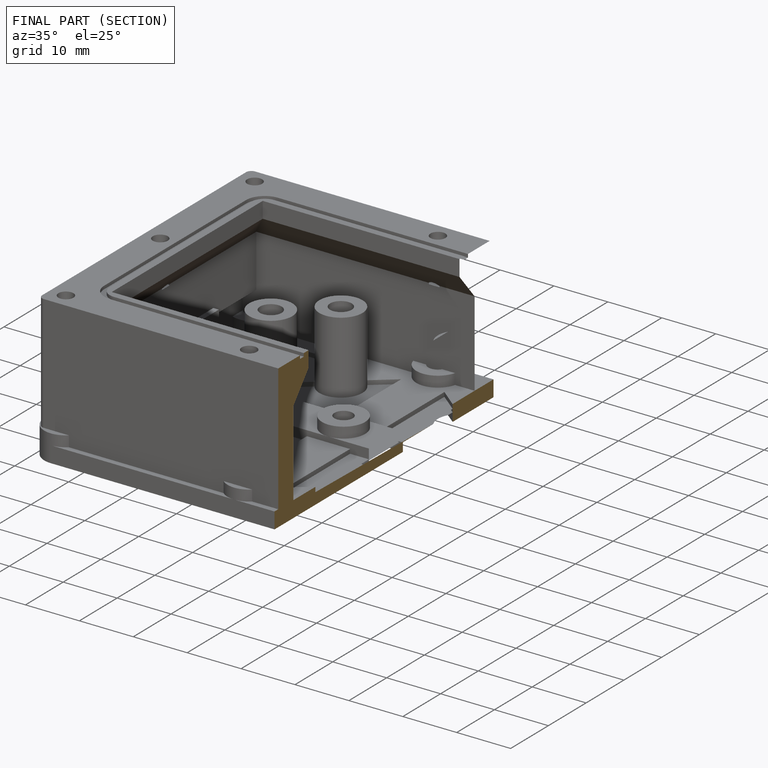
[diagram: finished part — half-section view (interior)]
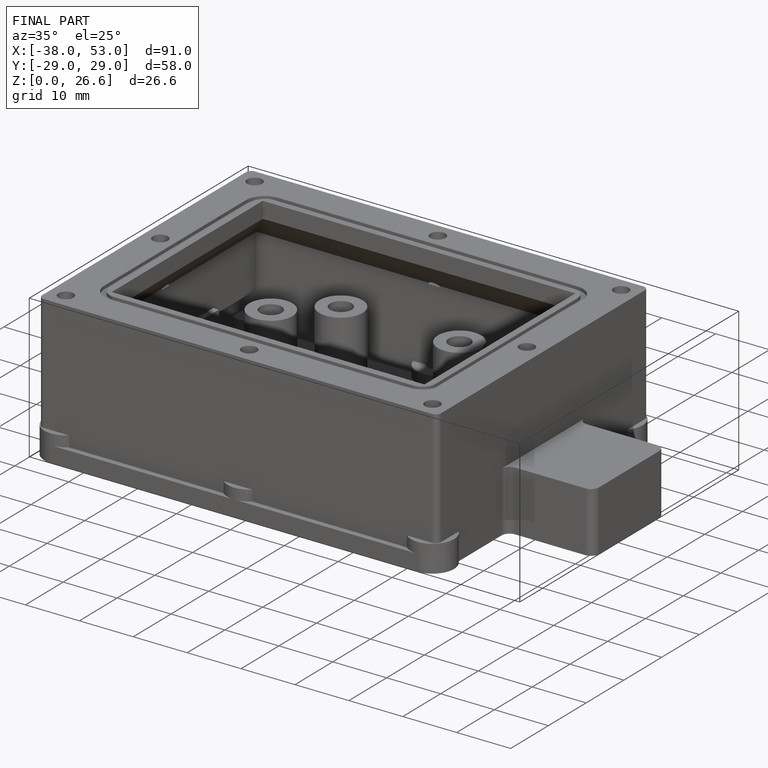
[diagram: finished part — iso view with bounding-box wireframe]
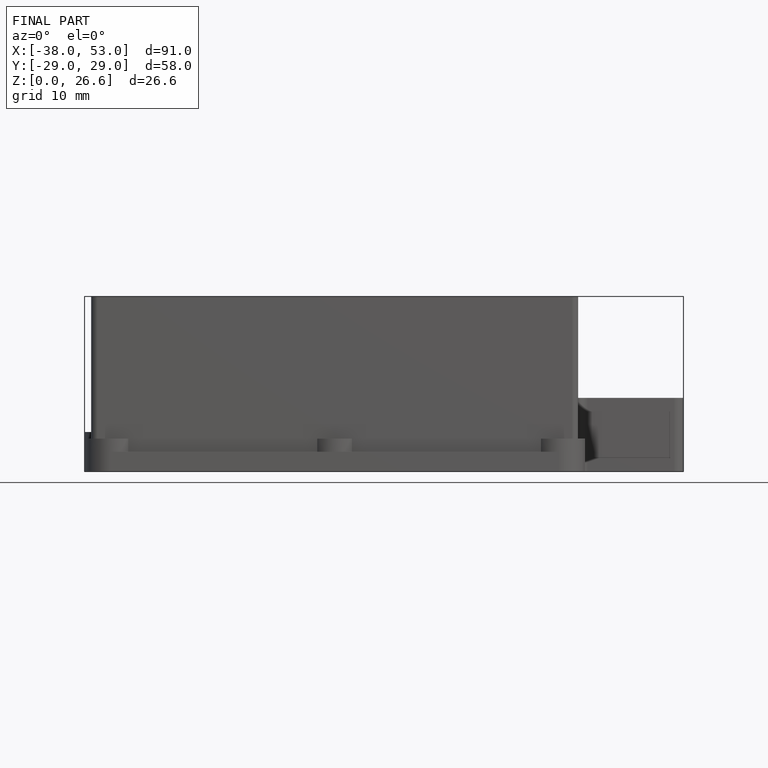
[diagram: finished part — front view with bounding-box wireframe]
